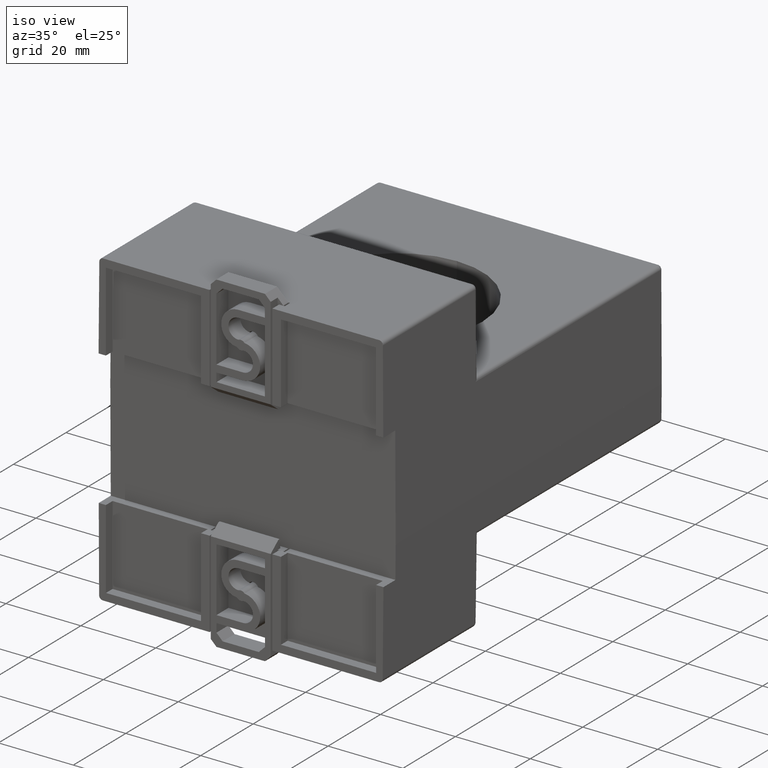
[diagram: clean part render]
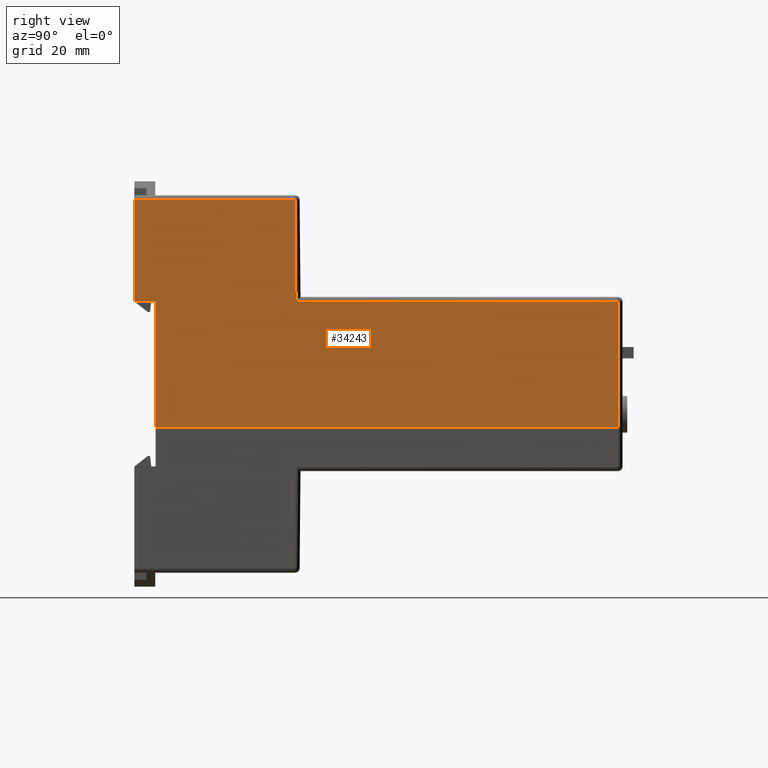
[diagram: tour spotlight — one face highlighted and labeled with its STEP entity id]
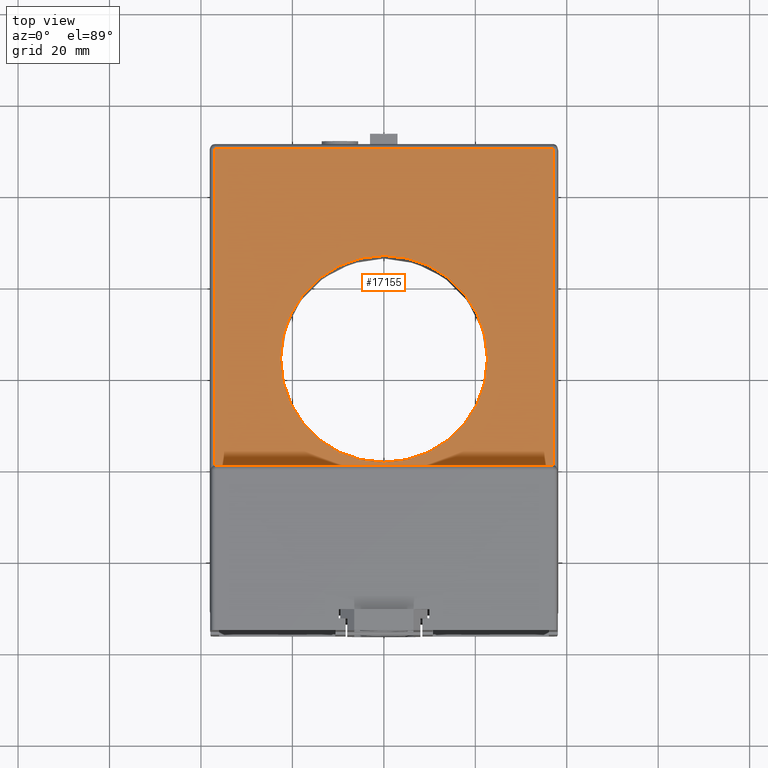
[diagram: tour spotlight — one face highlighted and labeled with its STEP entity id]
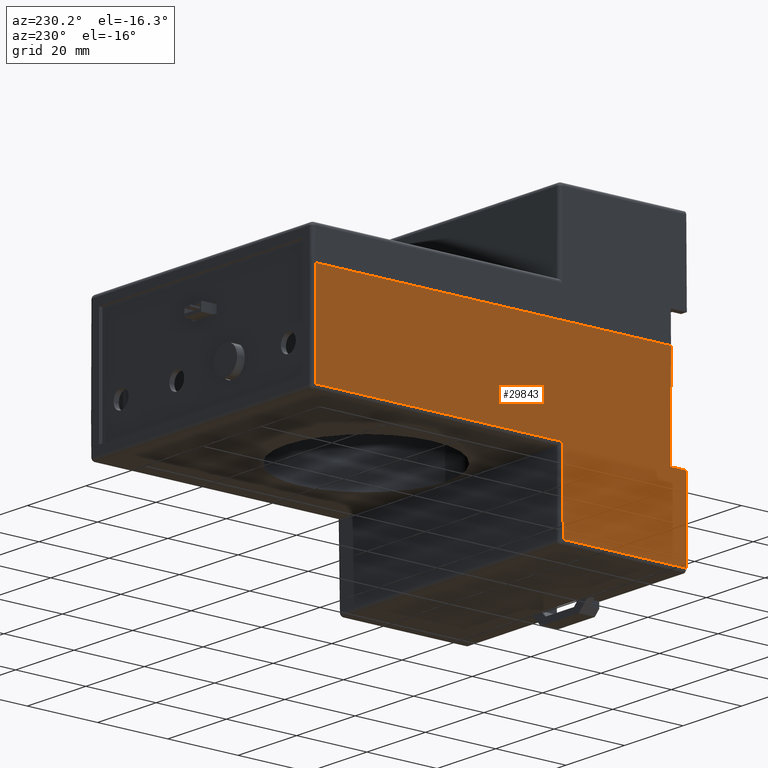
[diagram: tour spotlight — one face highlighted and labeled with its STEP entity id]
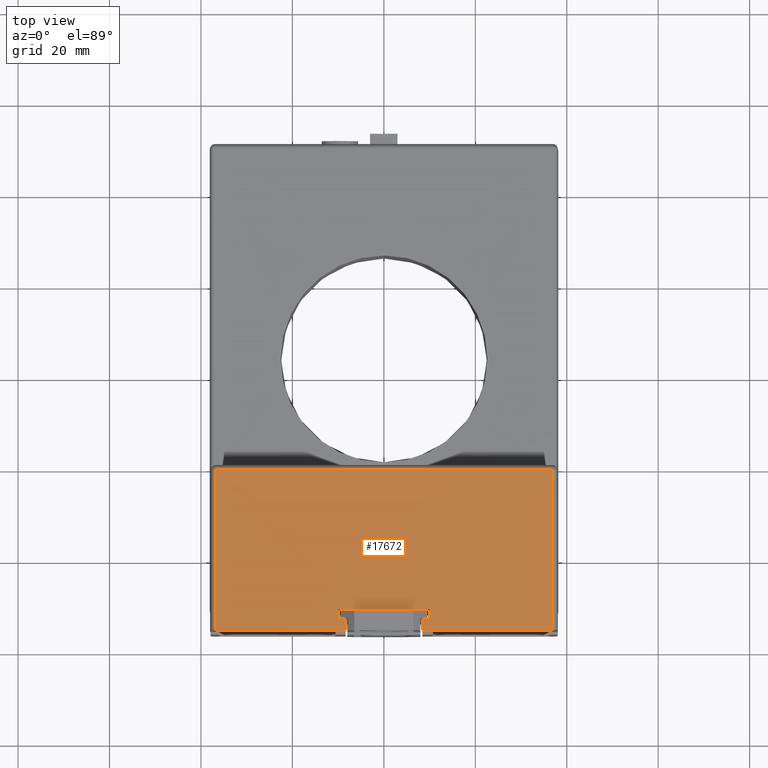
[diagram: tour spotlight — one face highlighted and labeled with its STEP entity id]
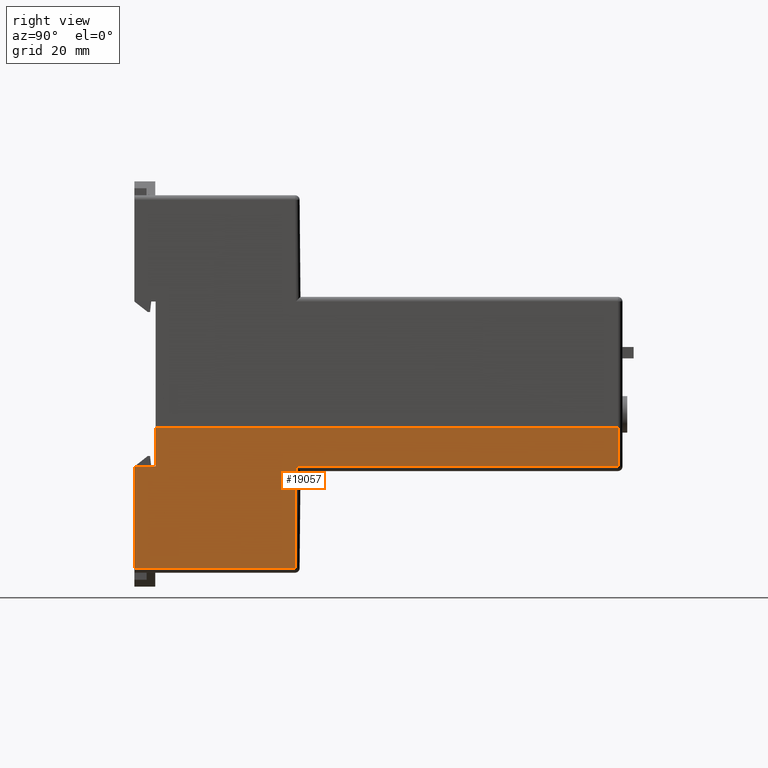
[diagram: tour spotlight — one face highlighted and labeled with its STEP entity id]
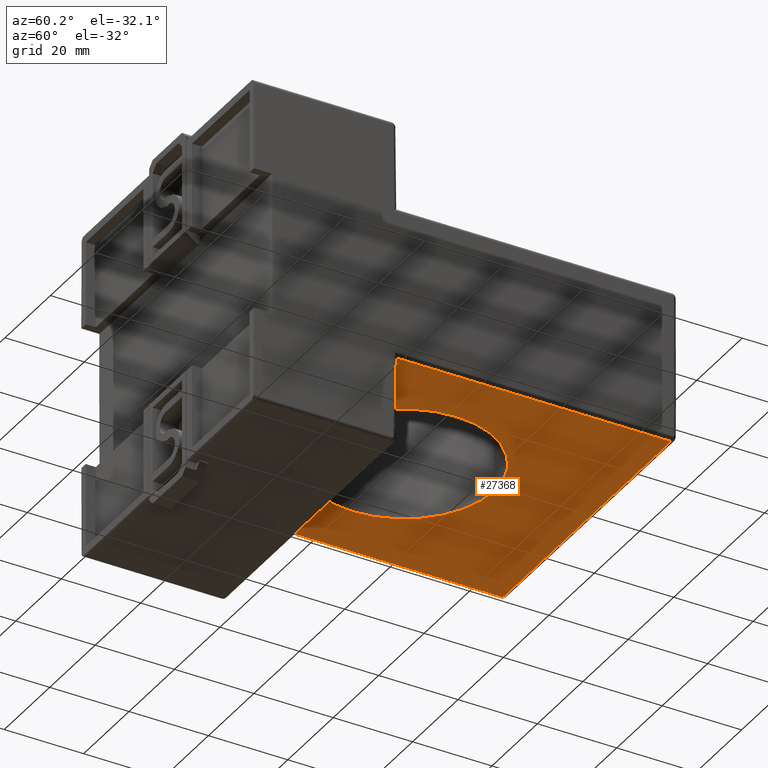
[diagram: tour spotlight — one face highlighted and labeled with its STEP entity id]
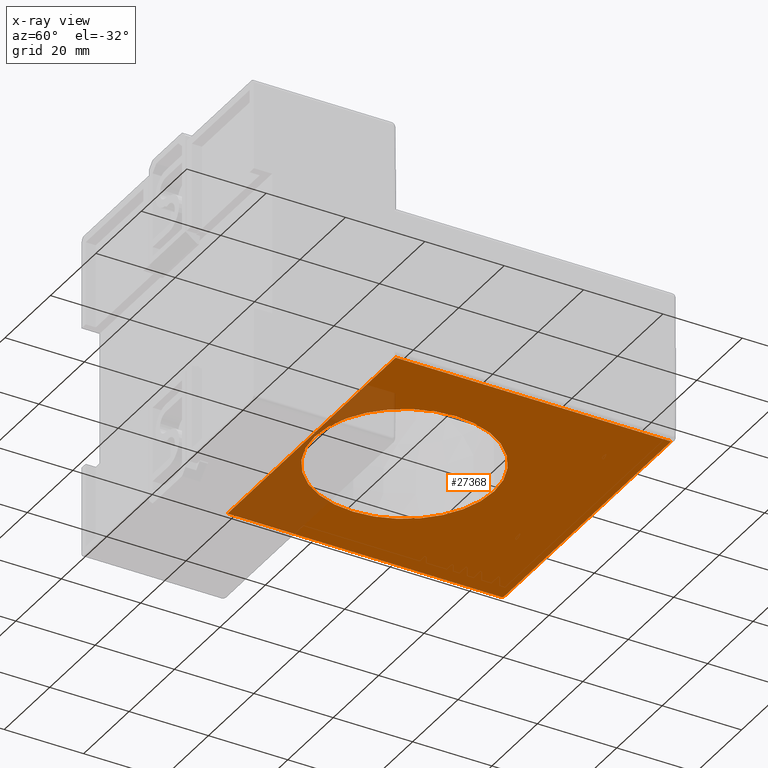
[diagram: x-ray of the same camera — body ghosted, this tour face saturated]
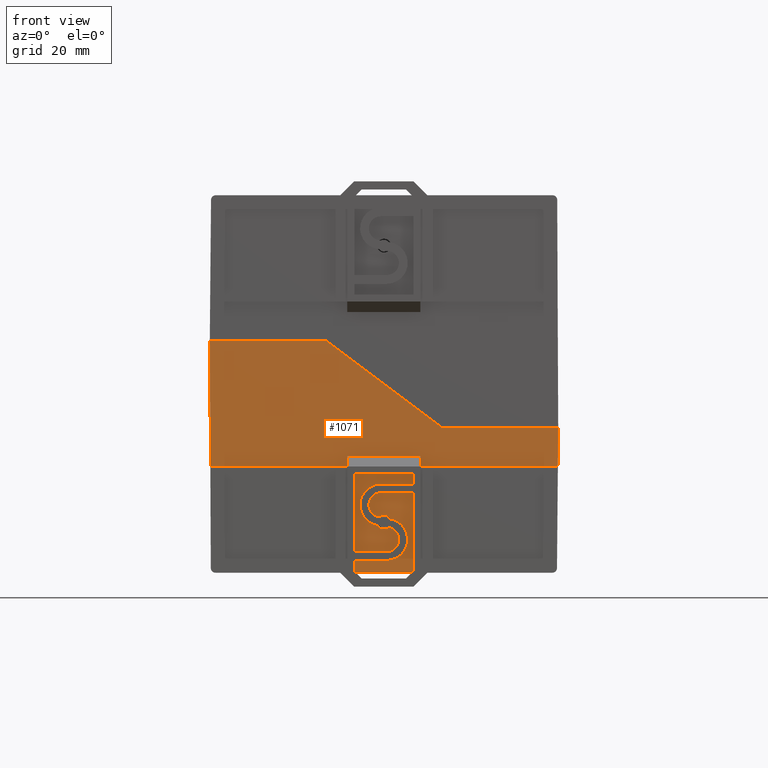
[diagram: tour spotlight — one face highlighted and labeled with its STEP entity id]
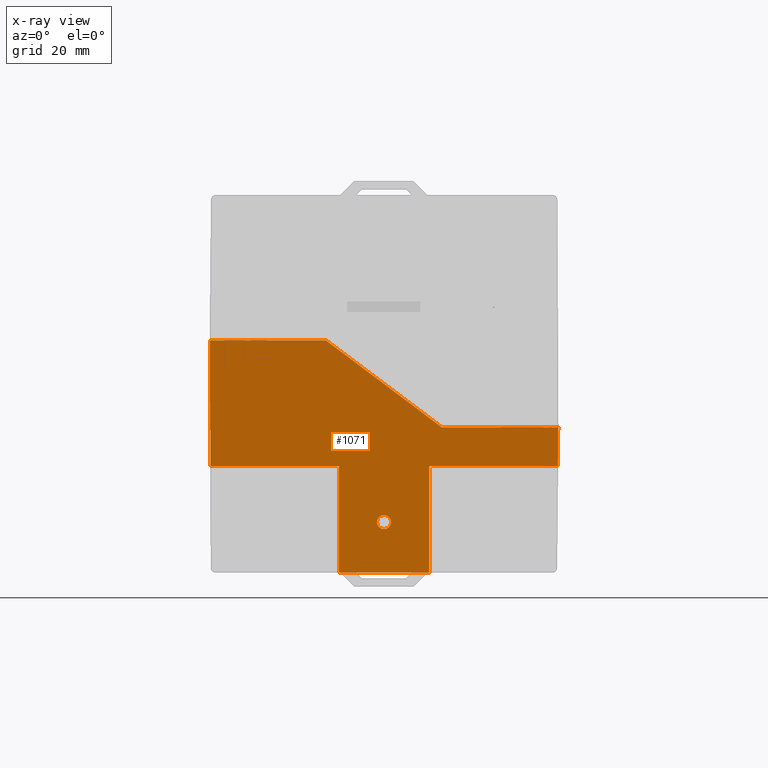
[diagram: x-ray of the same camera — body ghosted, this tour face saturated]
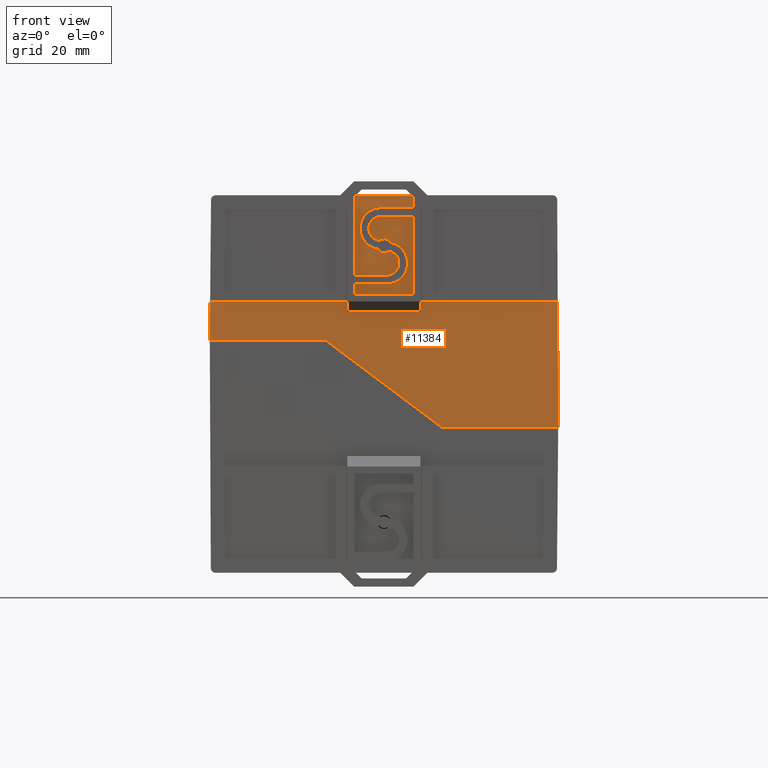
[diagram: tour spotlight — one face highlighted and labeled with its STEP entity id]
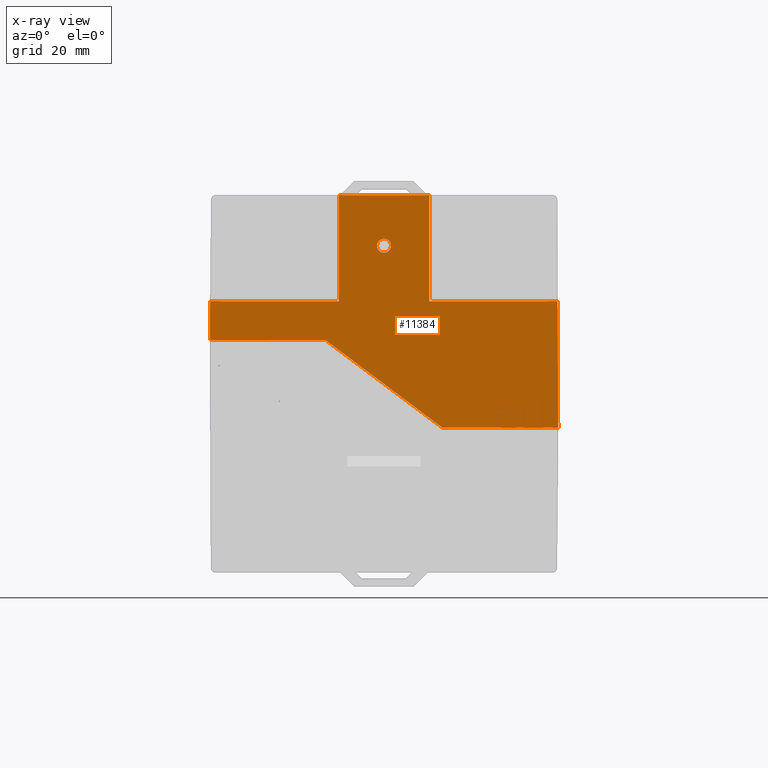
[diagram: x-ray of the same camera — body ghosted, this tour face saturated]
A machine part: a face-by-face anatomy tour. The part has 1046 B-rep faces; the first image is the clean iso view, then the 8 largest visible faces are spotlighted one at a time (largest first), each with its STEP entity span.

Face 1 — right view, entity #34243. In plain terms, the highlighted planar face has unit normal (1, 0, 0.0044).
Definition (entity closure, byte-faithful):
#30 = CARTESIAN_POINT ( 'NONE',  ( 1.492723693535687346, -2.816293787826626094, 0.8475665139999902786 ) ) ;
#44 = CARTESIAN_POINT ( 'NONE',  ( 1.496596457292090454, -2.816293787826626094, -0.04000000047558559257 ) ) ;
#270 = ORIENTED_EDGE ( 'NONE', *, *, #10837, .T. ) ;
#595 = CARTESIAN_POINT ( 'NONE',  ( 1.496592087636614110, -1.607685777358805135, -0.03919829871860153192 ) ) ;
#1323 = LINE ( 'NONE', #23182, #25354 ) ;
#2337 = CARTESIAN_POINT ( 'NONE',  ( 1.492774225619958539, -1.615268391268275927, 0.8357803879475098618 ) ) ;
#2631 = B_SPLINE_CURVE_WITH_KNOTS ( 'NONE', 3,
 ( #595, #19107, #11618, #2922 ),
 .UNSPECIFIED., .F., .F.,
 ( 4, 4 ),
 ( 0.000000000000000000, 1.000000000000000000 ),
 .UNSPECIFIED. ) ;
#2922 = CARTESIAN_POINT ( 'NONE',  ( 1.492774225619958539, -1.615268391268275927, 0.8357803879475098618 ) ) ;
#3330 = VERTEX_POINT ( 'NONE', #22523 ) ;
#3452 = LINE ( 'NONE', #17125, #20082 ) ;
#3633 = VECTOR ( 'NONE', #11294, 39.37007874015748143 ) ;
#3744 = B_SPLINE_CURVE_WITH_KNOTS ( 'NONE', 3,
 ( #12589, #28936, #7431, #23412 ),
 .UNSPECIFIED., .F., .F.,
 ( 4, 4 ),
 ( 0.000000000000000000, 1.000000000000000000 ),
 .UNSPECIFIED. ) ;
#4182 = VECTOR ( 'NONE', #19376, 39.37007874015748854 ) ;
#4874 = CARTESIAN_POINT ( 'NONE',  ( 1.492775027347147621, -2.996293787826625810, 0.8358017038725689130 ) ) ;
#5375 = CARTESIAN_POINT ( 'NONE',  ( 1.492775089519872589, -2.075610190121058629, 0.8357874958592902415 ) ) ;
#6965 = VERTEX_POINT ( 'NONE', #10393 ) ;
#7040 = DIRECTION ( 'NONE',  ( 0.9999904807223222170, 0.000000000000000000, 0.004363308920883456066 ) ) ;
#7431 = CARTESIAN_POINT ( 'NONE',  ( 1.498172203625456778, 1.164341678823145987, -0.4011321966990649135 ) ) ;
#8223 = EDGE_CURVE ( 'NONE', #31862, #3330, #8270, .T. ) ;
#8270 = LINE ( 'NONE', #16592, #3633 ) ;
#8726 = AXIS2_PLACEMENT_3D ( 'NONE', #30856, #7040, #22849 ) ;
#8733 = VERTEX_POINT ( 'NONE', #44 ) ;
#8971 = ORIENTED_EDGE ( 'NONE', *, *, #13637, .T. ) ;
#10290 = CARTESIAN_POINT ( 'NONE',  ( 1.497027193035681103, -2.996293787826625810, -0.1387167430000149637 ) ) ;
#10348 = CARTESIAN_POINT ( 'NONE',  ( 1.492775058522600062, -2.535951988973842219, 0.8357945998663190990 ) ) ;
#10393 = CARTESIAN_POINT ( 'NONE',  ( 1.501330692535673306, -2.816293787826626094, -1.125000000000013767 ) ) ;
#10837 = EDGE_CURVE ( 'NONE', #35133, #33554, #31633, .T. ) ;
#11120 = DIRECTION ( 'NONE',  ( 0.000000000000000000, 1.000000000000000000, 0.000000000000000000 ) ) ;
#11294 = DIRECTION ( 'NONE',  ( 0.000000000000000000, -1.000000000000000000, 0.000000000000000000 ) ) ;
#11618 = CARTESIAN_POINT ( 'NONE',  ( 1.494047733401352884, -1.612740853298451960, 0.5441208295962433050 ) ) ;
#12381 = ORIENTED_EDGE ( 'NONE', *, *, #8223, .T. ) ;
#12398 = FACE_OUTER_BOUND ( 'NONE', #32472, .T. ) ;
#12552 = ORIENTED_EDGE ( 'NONE', *, *, #22184, .T. ) ;
#12589 = CARTESIAN_POINT ( 'NONE',  ( 1.501331410439247893, 1.164352872123645799, -1.124999996867549257 ) ) ;
#13637 = EDGE_CURVE ( 'NONE', #15381, #8733, #1323, .T. ) ;
#14654 = ORIENTED_EDGE ( 'NONE', *, *, #29491, .T. ) ;
#15381 = VERTEX_POINT ( 'NONE', #24362 ) ;
#16592 = CARTESIAN_POINT ( 'NONE',  ( 1.496592959168775439, -0.9034885178266259809, -0.03919829468800295480 ) ) ;
#16786 = CARTESIAN_POINT ( 'NONE',  ( 1.501331410439247893, 1.164352872123645799, -1.124999996867549257 ) ) ;
#17125 = CARTESIAN_POINT ( 'NONE',  ( 1.501330692535673306, -0.8062937878266260849, -1.125000000000013767 ) ) ;
#17498 = VERTEX_POINT ( 'NONE', #16786 ) ;
#17852 = DIRECTION ( 'NONE',  ( 0.000000000000000000, 1.000000000000000000, 0.000000000000000000 ) ) ;
#18968 = ORIENTED_EDGE ( 'NONE', *, *, #21414, .T. ) ;
#19107 = CARTESIAN_POINT ( 'NONE',  ( 1.495320346285561097, -1.610213315328628214, 0.2524612673402252816 ) ) ;
#19376 = DIRECTION ( 'NONE',  ( 0.004363308920883450862, 0.000000000000000000, -0.9999904807223221059 ) ) ;
#20082 = VECTOR ( 'NONE', #11120, 39.37007874015748143 ) ;
#20195 = EDGE_CURVE ( 'NONE', #3330, #35133, #2631, .T. ) ;
#20726 = PLANE ( 'NONE',  #8726 ) ;
#20954 = LINE ( 'NONE', #10290, #25718 ) ;
#21376 = CARTESIAN_POINT ( 'NONE',  ( 1.492775027347147621, -2.996293787826625810, 0.8358017038725689130 ) ) ;
#21414 = EDGE_CURVE ( 'NONE', #6965, #17498, #3452, .T. ) ;
#21535 = LINE ( 'NONE', #30, #4182 ) ;
#22184 = EDGE_CURVE ( 'NONE', #17498, #31862, #3744, .T. ) ;
#22523 = CARTESIAN_POINT ( 'NONE',  ( 1.496592087636614110, -1.607685777358805135, -0.03919829871860153192 ) ) ;
#22849 = DIRECTION ( 'NONE',  ( 0.000000000000000000, -1.000000000000000000, 0.000000000000000000 ) ) ;
#23182 = CARTESIAN_POINT ( 'NONE',  ( 1.496596457294165239, -0.9034885178266259809, -0.04000000095115670284 ) ) ;
#23412 = CARTESIAN_POINT ( 'NONE',  ( 1.496593678547291528, 1.164336082172895637, -0.03919829190969988109 ) ) ;
#23851 = CARTESIAN_POINT ( 'NONE',  ( 1.492774225619958539, -1.615268391268275927, 0.8357803879475098618 ) ) ;
#24362 = CARTESIAN_POINT ( 'NONE',  ( 1.496596457292783455, -2.996293787826625810, -0.04000000047576291601 ) ) ;
#25354 = VECTOR ( 'NONE', #17852, 39.37007874015748143 ) ;
#25718 = VECTOR ( 'NONE', #31946, 39.37007874015748854 ) ;
#27073 = CARTESIAN_POINT ( 'NONE',  ( 1.496593678547291528, 1.164336082172895637, -0.03919829190969988109 ) ) ;
#28936 = CARTESIAN_POINT ( 'NONE',  ( 1.499751448080564709, 1.164347275473397891, -0.7630660983495372029 ) ) ;
#29491 = EDGE_CURVE ( 'NONE', #8733, #6965, #21535, .T. ) ;
#30856 = CARTESIAN_POINT ( 'NONE',  ( 1.492723693535687346, -2.996293787826625810, 0.8475665139999902786 ) ) ;
#31633 = B_SPLINE_CURVE_WITH_KNOTS ( 'NONE', 3,
 ( #23851, #5375, #10348, #21376 ),
 .UNSPECIFIED., .F., .F.,
 ( 4, 4 ),
 ( 0.000000000000000000, 1.000000000000000000 ),
 .UNSPECIFIED. ) ;
#31862 = VERTEX_POINT ( 'NONE', #27073 ) ;
#31946 = DIRECTION ( 'NONE',  ( 0.004363308920883450862, 0.000000000000000000, -0.9999904807223221059 ) ) ;
#32472 = EDGE_LOOP ( 'NONE', ( #12381, #34033, #270, #33428, #8971, #14654, #18968, #12552 ) ) ;
#33417 = EDGE_CURVE ( 'NONE', #33554, #15381, #20954, .T. ) ;
#33428 = ORIENTED_EDGE ( 'NONE', *, *, #33417, .T. ) ;
#33554 = VERTEX_POINT ( 'NONE', #4874 ) ;
#34033 = ORIENTED_EDGE ( 'NONE', *, *, #20195, .T. ) ;
#34243 = ADVANCED_FACE ( 'NONE', ( #12398 ), #20726, .T. ) ;
#35133 = VERTEX_POINT ( 'NONE', #2337 ) ;

Face 2 — top view, entity #17155. In plain terms, the highlighted planar face has unit normal (-0, 0, -1).
Definition (entity closure, byte-faithful):
#115 = DIRECTION ( 'NONE',  ( 7.000000000000000150E-15, 0.000000000000000000, 1.000000000000000000 ) ) ;
#252 = CIRCLE ( 'NONE', #23509, 0.8904034189999999738 ) ;
#486 = CARTESIAN_POINT ( 'NONE',  ( 0.001330692535681425289, -0.6462937878266260538, 1.092739197465704696E-15 ) ) ;
#1269 = LINE ( 'NONE', #9102, #3606 ) ;
#1388 = EDGE_CURVE ( 'NONE', #20201, #3164, #12426, .T. ) ;
#1484 = DIRECTION ( 'NONE',  ( 1.000000000000000000, 0.000000000000000000, -7.000000000000000938E-15 ) ) ;
#1699 = EDGE_CURVE ( 'NONE', #19348, #3164, #4659, .T. ) ;
#2282 = CARTESIAN_POINT ( 'NONE',  ( -1.456293795405334768, -1.568659322776454701, 5.616848120145913300E-07 ) ) ;
#3164 = VERTEX_POINT ( 'NONE', #30324 ) ;
#3217 = EDGE_CURVE ( 'NONE', #26139, #7997, #252, .T. ) ;
#3606 = VECTOR ( 'NONE', #25781, 39.37007874015748143 ) ;
#3695 = ORIENTED_EDGE ( 'NONE', *, *, #10621, .F. ) ;
#4224 = EDGE_LOOP ( 'NONE', ( #16128, #5225 ) ) ;
#4659 = LINE ( 'NONE', #31840, #4747 ) ;
#4747 = VECTOR ( 'NONE', #1484, 39.37007874015748143 ) ;
#5225 = ORIENTED_EDGE ( 'NONE', *, *, #3217, .F. ) ;
#6170 = CARTESIAN_POINT ( 'NONE',  ( 0.001330692535681425289, 0.2441096311733744195, 1.092739197465704696E-15 ) ) ;
#6183 = CARTESIAN_POINT ( 'NONE',  ( 1.457194806560365929, -0.6576589748279371150, -7.709014693006753181E-09 ) ) ;
#6508 = DIRECTION ( 'NONE',  ( -7.000000000000000938E-15, 0.000000000000000000, -1.000000000000000000 ) ) ;
#6564 = VERTEX_POINT ( 'NONE', #2282 ) ;
#6854 = CARTESIAN_POINT ( 'NONE',  ( 1.474704807535681006, -1.585058090826625854, -1.065420717529063030E-14 ) ) ;
#7997 = VERTEX_POINT ( 'NONE', #6170 ) ;
#8261 = CARTESIAN_POINT ( 'NONE',  ( 1.457180593343850417, -1.568655253667370131, 2.122863892547027749E-08 ) ) ;
#8772 = CARTESIAN_POINT ( 'NONE',  ( -0.4851356658222711338, -1.568657781576613397, 3.831457446423450595E-07 ) ) ;
#9010 = DIRECTION ( 'NONE',  ( -1.000000000000000000, 0.000000000000000000, 7.000000000000000938E-15 ) ) ;
#9102 = CARTESIAN_POINT ( 'NONE',  ( -1.456368731464318778, -1.585058090826625854, 9.015098379092066452E-15 ) ) ;
#9169 = FACE_BOUND ( 'NONE', #4224, .T. ) ;
#10621 = EDGE_CURVE ( 'NONE', #20201, #6564, #14389, .T. ) ;
#12426 = B_SPLINE_CURVE_WITH_KNOTS ( 'NONE', 3,
 ( #30526, #6183, #28210, #16859 ),
 .UNSPECIFIED., .F., .F.,
 ( 4, 4 ),
 ( 1.321415185193150075E-06, 1.000000000000000000 ),
 .UNSPECIFIED. ) ;
#13674 = CARTESIAN_POINT ( 'NONE',  ( 0.001330692535681425289, -1.536697206826626250, 1.092739197465704696E-15 ) ) ;
#14389 = B_SPLINE_CURVE_WITH_KNOTS ( 'NONE', 3,
 ( #19433, #27950, #8772, #19621 ),
 .UNSPECIFIED., .F., .F.,
 ( 4, 4 ),
 ( 0.000000000000000000, 1.000000000000000000 ),
 .UNSPECIFIED. ) ;
#15029 = FACE_OUTER_BOUND ( 'NONE', #19567, .T. ) ;
#16128 = ORIENTED_EDGE ( 'NONE', *, *, #17094, .F. ) ;
#16859 = CARTESIAN_POINT ( 'NONE',  ( 1.457223255261008044, 1.164336082238254022, -8.780214088596811020E-11 ) ) ;
#17094 = EDGE_CURVE ( 'NONE', #7997, #26139, #25248, .T. ) ;
#17155 = ADVANCED_FACE ( 'NONE', ( #9169, #15029 ), #20192, .F. ) ;
#19348 = VERTEX_POINT ( 'NONE', #19873 ) ;
#19433 = CARTESIAN_POINT ( 'NONE',  ( 1.457180593343850417, -1.568655253667370131, 2.122863892547027749E-08 ) ) ;
#19567 = EDGE_LOOP ( 'NONE', ( #35169, #34122, #21559, #3695 ) ) ;
#19621 = CARTESIAN_POINT ( 'NONE',  ( -1.456293795405334768, -1.568659322776454701, 5.616848120145913300E-07 ) ) ;
#19873 = CARTESIAN_POINT ( 'NONE',  ( -1.456368731279893636, 1.164336082433041319, -5.115631234455764260E-11 ) ) ;
#20192 = PLANE ( 'NONE',  #26404 ) ;
#20201 = VERTEX_POINT ( 'NONE', #8261 ) ;
#21559 = ORIENTED_EDGE ( 'NONE', *, *, #34968, .T. ) ;
#21794 = DIRECTION ( 'NONE',  ( 0.000000000000000000, 1.000000000000000000, 0.000000000000000000 ) ) ;
#23509 = AXIS2_PLACEMENT_3D ( 'NONE', #24466, #32466, #24643 ) ;
#24466 = CARTESIAN_POINT ( 'NONE',  ( 0.001330692535681425289, -0.6462937878266260538, 1.092739197465704696E-15 ) ) ;
#24643 = DIRECTION ( 'NONE',  ( 0.000000000000000000, 1.000000000000000000, 0.000000000000000000 ) ) ;
#25248 = CIRCLE ( 'NONE', #28087, 0.8904034189999999738 ) ;
#25781 = DIRECTION ( 'NONE',  ( 0.000000000000000000, -1.000000000000000000, 0.000000000000000000 ) ) ;
#26139 = VERTEX_POINT ( 'NONE', #13674 ) ;
#26404 = AXIS2_PLACEMENT_3D ( 'NONE', #6854, #6508, #9010 ) ;
#27950 = CARTESIAN_POINT ( 'NONE',  ( 0.4860224637607899467, -1.568657779901279081, 1.911714474721929345E-07 ) ) ;
#28087 = AXIS2_PLACEMENT_3D ( 'NONE', #486, #115, #21794 ) ;
#28210 = CARTESIAN_POINT ( 'NONE',  ( 1.457209031056098336, 0.2533385536727173482, -6.829619984160649566E-15 ) ) ;
#30324 = CARTESIAN_POINT ( 'NONE',  ( 1.457223255261008044, 1.164336082238254022, -8.780214088596811020E-11 ) ) ;
#30526 = CARTESIAN_POINT ( 'NONE',  ( 1.457180593343850417, -1.568655253667370131, 2.122863892547027749E-08 ) ) ;
#31840 = CARTESIAN_POINT ( 'NONE',  ( 0.0004272620356815613600, 1.164336082173376141, -3.005032793030688554E-15 ) ) ;
#32466 = DIRECTION ( 'NONE',  ( 7.000000000000000150E-15, 0.000000000000000000, 1.000000000000000000 ) ) ;
#34122 = ORIENTED_EDGE ( 'NONE', *, *, #1699, .F. ) ;
#34968 = EDGE_CURVE ( 'NONE', #19348, #6564, #1269, .T. ) ;
#35169 = ORIENTED_EDGE ( 'NONE', *, *, #1388, .T. ) ;

Face 3 — auxiliary view, entity #29843. In plain terms, the highlighted planar face has unit normal (-1, 0, -0.0044).
Definition (entity closure, byte-faithful):
#1606 = EDGE_CURVE ( 'NONE', #32773, #16253, #23755, .T. ) ;
#1938 = CARTESIAN_POINT ( 'NONE',  ( -1.497090063009207661, 1.164347275473397003, -0.7369339016505087603 ) ) ;
#2319 = LINE ( 'NONE', #18299, #3328 ) ;
#2824 = CARTESIAN_POINT ( 'NONE',  ( -1.498670025367893732, 1.164352872123645799, -0.3750000031324988159 ) ) ;
#3328 = VECTOR ( 'NONE', #12993, 39.37007874015748143 ) ;
#4614 = CARTESIAN_POINT ( 'NONE',  ( -1.490112840548586615, -1.615268391268275927, -2.335780387947555159 ) ) ;
#4853 = CARTESIAN_POINT ( 'NONE',  ( -1.490113704448504217, -2.075610190121059073, -2.335787495859336094 ) ) ;
#4937 = CARTESIAN_POINT ( 'NONE',  ( -1.493932293475932926, 1.164336082172895637, -1.460801708090346374 ) ) ;
#5519 = CARTESIAN_POINT ( 'NONE',  ( -1.490113642275775474, -2.996293787826625810, -2.335801703872613988 ) ) ;
#5894 = AXIS2_PLACEMENT_3D ( 'NONE', #13837, #24158, #35014 ) ;
#6749 = DIRECTION ( 'NONE',  ( 0.000000000000000000, -1.000000000000000000, 0.000000000000000000 ) ) ;
#7022 = VECTOR ( 'NONE', #32099, 39.37007874015748854 ) ;
#7232 = VECTOR ( 'NONE', #6749, 39.37007874015748143 ) ;
#7426 = VERTEX_POINT ( 'NONE', #18014 ) ;
#7821 = CARTESIAN_POINT ( 'NONE',  ( -1.492658961214196944, -1.610213315328628658, -1.752461267340270856 ) ) ;
#7980 = CARTESIAN_POINT ( 'NONE',  ( -1.493930702565248181, -1.607685777358805135, -1.460801701281446707 ) ) ;
#8076 = ORIENTED_EDGE ( 'NONE', *, *, #34005, .T. ) ;
#8357 = CARTESIAN_POINT ( 'NONE',  ( -1.490113673451231691, -2.535951988973842219, -2.335794599866364951 ) ) ;
#8509 = FACE_OUTER_BOUND ( 'NONE', #18341, .T. ) ;
#9605 = EDGE_CURVE ( 'NONE', #7426, #32773, #16845, .T. ) ;
#10042 = ORIENTED_EDGE ( 'NONE', *, *, #22614, .T. ) ;
#10520 = VECTOR ( 'NONE', #31440, 39.37007874015748143 ) ;
#10675 = CARTESIAN_POINT ( 'NONE',  ( -1.491386348329986733, -1.612740853298452182, -2.044120829596288935 ) ) ;
#10885 = CARTESIAN_POINT ( 'NONE',  ( -1.493935072221421523, -2.996293787826625810, -1.459999999524283387 ) ) ;
#12466 = EDGE_CURVE ( 'NONE', #13252, #24980, #33741, .T. ) ;
#12679 = ORIENTED_EDGE ( 'NONE', *, *, #24910, .T. ) ;
#12735 = CARTESIAN_POINT ( 'NONE',  ( -1.490062308464318974, -2.816293787826626094, -2.347566514000035465 ) ) ;
#12874 = ORIENTED_EDGE ( 'NONE', *, *, #9605, .T. ) ;
#12993 = DIRECTION ( 'NONE',  ( 0.000000000000000000, 1.000000000000000000, 0.000000000000000000 ) ) ;
#13252 = VERTEX_POINT ( 'NONE', #4937 ) ;
#13279 = CARTESIAN_POINT ( 'NONE',  ( -1.493935072220728522, -2.816293787826626094, -1.459999999524462577 ) ) ;
#13290 = EDGE_CURVE ( 'NONE', #28433, #28954, #26063, .T. ) ;
#13837 = CARTESIAN_POINT ( 'NONE',  ( -1.490062308464318974, -2.996293787826625810, -2.347566514000035465 ) ) ;
#15240 = DIRECTION ( 'NONE',  ( -0.004363308920890450471, 0.000000000000000000, 0.9999904807223221059 ) ) ;
#15930 = CARTESIAN_POINT ( 'NONE',  ( -1.494365807964318948, -2.996293787826625810, -1.361283257000035496 ) ) ;
#16136 = CARTESIAN_POINT ( 'NONE',  ( -1.493932293475932926, 1.164336082172895637, -1.460801708090346374 ) ) ;
#16253 = VERTEX_POINT ( 'NONE', #10885 ) ;
#16506 = PLANE ( 'NONE',  #5894 ) ;
#16623 = EDGE_CURVE ( 'NONE', #28954, #22245, #2319, .T. ) ;
#16845 = B_SPLINE_CURVE_WITH_KNOTS ( 'NONE', 3,
 ( #26333, #4853, #8357, #5519 ),
 .UNSPECIFIED., .F., .F.,
 ( 4, 4 ),
 ( 0.000000000000000000, 1.000000000000000000 ),
 .UNSPECIFIED. ) ;
#18014 = CARTESIAN_POINT ( 'NONE',  ( -1.490112840548586615, -1.615268391268275927, -2.335780387947555159 ) ) ;
#18299 = CARTESIAN_POINT ( 'NONE',  ( -1.498669307464318923, -0.8062937878266260849, -0.3750000000000343059 ) ) ;
#18341 = EDGE_LOOP ( 'NONE', ( #24595, #12679, #12874, #21127, #10042, #32041, #21919, #8076 ) ) ;
#19418 = CARTESIAN_POINT ( 'NONE',  ( -1.498669307464318923, -2.816293787826626094, -0.3750000000000343059 ) ) ;
#20234 = VECTOR ( 'NONE', #15240, 39.37007874015748854 ) ;
#21127 = ORIENTED_EDGE ( 'NONE', *, *, #1606, .T. ) ;
#21483 = CARTESIAN_POINT ( 'NONE',  ( -1.495510818554097066, 1.164341678823144877, -1.098867803300981993 ) ) ;
#21919 = ORIENTED_EDGE ( 'NONE', *, *, #16623, .T. ) ;
#22245 = VERTEX_POINT ( 'NONE', #2824 ) ;
#22349 = CARTESIAN_POINT ( 'NONE',  ( -1.493930702565248181, -1.607685777358805135, -1.460801701281446707 ) ) ;
#22614 = EDGE_CURVE ( 'NONE', #16253, #28433, #22910, .T. ) ;
#22910 = LINE ( 'NONE', #28800, #10520 ) ;
#23090 = CARTESIAN_POINT ( 'NONE',  ( -1.493931574097413506, -0.9034885178266259809, -1.460801705312043230 ) ) ;
#23755 = LINE ( 'NONE', #15930, #7022 ) ;
#24158 = DIRECTION ( 'NONE',  ( -0.9999904807223221059, 0.000000000000000000, -0.004363308920890455675 ) ) ;
#24595 = ORIENTED_EDGE ( 'NONE', *, *, #12466, .T. ) ;
#24910 = EDGE_CURVE ( 'NONE', #24980, #7426, #28542, .T. ) ;
#24980 = VERTEX_POINT ( 'NONE', #22349 ) ;
#26063 = LINE ( 'NONE', #12735, #20234 ) ;
#26333 = CARTESIAN_POINT ( 'NONE',  ( -1.490112840548586615, -1.615268391268275927, -2.335780387947555159 ) ) ;
#28433 = VERTEX_POINT ( 'NONE', #13279 ) ;
#28542 = B_SPLINE_CURVE_WITH_KNOTS ( 'NONE', 3,
 ( #7980, #7821, #10675, #4614 ),
 .UNSPECIFIED., .F., .F.,
 ( 4, 4 ),
 ( 0.000000000000000000, 1.000000000000000000 ),
 .UNSPECIFIED. ) ;
#28800 = CARTESIAN_POINT ( 'NONE',  ( -1.493935072222799532, -0.9034885178266259809, -1.459999999048891439 ) ) ;
#28954 = VERTEX_POINT ( 'NONE', #19418 ) ;
#29635 = CARTESIAN_POINT ( 'NONE',  ( -1.498670025367893732, 1.164352872123645799, -0.3750000031324988159 ) ) ;
#29843 = ADVANCED_FACE ( 'NONE', ( #8509 ), #16506, .T. ) ;
#30040 = B_SPLINE_CURVE_WITH_KNOTS ( 'NONE', 3,
 ( #29635, #1938, #21483, #16136 ),
 .UNSPECIFIED., .F., .F.,
 ( 4, 4 ),
 ( 0.000000000000000000, 1.000000000000000000 ),
 .UNSPECIFIED. ) ;
#30163 = CARTESIAN_POINT ( 'NONE',  ( -1.490113642275775474, -2.996293787826625810, -2.335801703872613988 ) ) ;
#31440 = DIRECTION ( 'NONE',  ( 0.000000000000000000, 1.000000000000000000, 0.000000000000000000 ) ) ;
#32041 = ORIENTED_EDGE ( 'NONE', *, *, #13290, .T. ) ;
#32099 = DIRECTION ( 'NONE',  ( -0.004363308920890450471, 0.000000000000000000, 0.9999904807223221059 ) ) ;
#32773 = VERTEX_POINT ( 'NONE', #30163 ) ;
#33741 = LINE ( 'NONE', #23090, #7232 ) ;
#34005 = EDGE_CURVE ( 'NONE', #22245, #13252, #30040, .T. ) ;
#35014 = DIRECTION ( 'NONE',  ( -0.004363308920890455675, 0.000000000000000000, 0.9999904807223221059 ) ) ;

Face 4 — top view, entity #17672. In plain terms, the highlighted planar face has unit normal (-0, 0, -1).
Definition (entity closure, byte-faithful):
#1209 = DIRECTION ( 'NONE',  ( 0.000000000000000000, 1.000000000000000000, 0.000000000000000000 ) ) ;
#1515 = CARTESIAN_POINT ( 'NONE',  ( -0.3286693063947476734, -2.895230795817787417, 0.8750000000000001110 ) ) ;
#1780 = CARTESIAN_POINT ( 'NONE',  ( 0.3313306931888153617, -2.996293787826625810, 0.8750000000000001110 ) ) ;
#2020 = DIRECTION ( 'NONE',  ( -1.000000000000000000, 0.000000000000000000, 7.000000000000000938E-15 ) ) ;
#2208 = CARTESIAN_POINT ( 'NONE',  ( 0.3313306928622528069, -2.895230795823310999, 0.8750000000000001110 ) ) ;
#2372 = CARTESIAN_POINT ( 'NONE',  ( -1.448732722464319167, -2.996293787826625810, 0.8750000000000001110 ) ) ;
#2670 = CARTESIAN_POINT ( 'NONE',  ( 1.453405323535685190, -2.996293787826625810, 0.8749999999999902300 ) ) ;
#3674 = CARTESIAN_POINT ( 'NONE',  ( -0.3286693067454720119, -2.996293787826625810, 0.8750000000000001110 ) ) ;
#3844 = VECTOR ( 'NONE', #19907, 39.37007874015748143 ) ;
#3897 = DIRECTION ( 'NONE',  ( 1.000000000000000000, 0.000000000000000000, -7.000000000000000938E-15 ) ) ;
#4502 = DIRECTION ( 'NONE',  ( -7.000000000000000938E-15, 0.000000000000000000, -1.000000000000000000 ) ) ;
#5084 = CARTESIAN_POINT ( 'NONE',  ( 0.002336300535685559201, -1.615321839826626027, 0.8750000000000001110 ) ) ;
#5175 = EDGE_CURVE ( 'NONE', #8923, #27010, #25606, .T. ) ;
#5215 = LINE ( 'NONE', #23869, #33627 ) ;
#5435 = EDGE_CURVE ( 'NONE', #33502, #32225, #27698, .T. ) ;
#5481 = VECTOR ( 'NONE', #29060, 39.37007874015748143 ) ;
#5930 = CARTESIAN_POINT ( 'NONE',  ( -0.3886693073247318719, -2.895230795813366509, 0.8750000000000001110 ) ) ;
#6008 = AXIS2_PLACEMENT_3D ( 'NONE', #23498, #4502, #2020 ) ;
#6147 = DIRECTION ( 'NONE',  ( 1.000000000000000000, 0.000000000000000000, -7.000000000000000938E-15 ) ) ;
#6292 = VERTEX_POINT ( 'NONE', #1780 ) ;
#6890 = EDGE_CURVE ( 'NONE', #6292, #8505, #11852, .T. ) ;
#7301 = VERTEX_POINT ( 'NONE', #5930 ) ;
#7366 = ORIENTED_EDGE ( 'NONE', *, *, #34710, .F. ) ;
#7887 = DIRECTION ( 'NONE',  ( -1.000000000000000000, 0.000000000000000000, 7.000000000000000938E-15 ) ) ;
#8167 = VECTOR ( 'NONE', #23894, 39.37007874015748143 ) ;
#8505 = VERTEX_POINT ( 'NONE', #2208 ) ;
#8547 = ORIENTED_EDGE ( 'NONE', *, *, #26432, .F. ) ;
#8889 = VECTOR ( 'NONE', #1209, 39.37007874015748143 ) ;
#8923 = VERTEX_POINT ( 'NONE', #12463 ) ;
#9201 = LINE ( 'NONE', #17565, #18971 ) ;
#9235 = DIRECTION ( 'NONE',  ( 0.000000000000000000, 1.000000000000000000, 0.000000000000000000 ) ) ;
#9381 = VECTOR ( 'NONE', #6147, 39.37007874015748143 ) ;
#9457 = VECTOR ( 'NONE', #35025, 39.37007874015748143 ) ;
#10075 = LINE ( 'NONE', #5084, #8167 ) ;
#10220 = CARTESIAN_POINT ( 'NONE',  ( -0.3886693071671492028, -2.816293787636775736, 0.8750000000000001110 ) ) ;
#11259 = EDGE_CURVE ( 'NONE', #27010, #6292, #15835, .T. ) ;
#11419 = EDGE_CURVE ( 'NONE', #23017, #29789, #12546, .T. ) ;
#11767 = CARTESIAN_POINT ( 'NONE',  ( -0.3286693063599642195, -2.305807813826625807, 0.8750000000000001110 ) ) ;
#11852 = LINE ( 'NONE', #14163, #27997 ) ;
#12463 = CARTESIAN_POINT ( 'NONE',  ( 1.453405323694519913, -1.615321818913442842, 0.8749999999086909286 ) ) ;
#12496 = PLANE ( 'NONE',  #6008 ) ;
#12546 = LINE ( 'NONE', #23563, #5481 ) ;
#13816 = ORIENTED_EDGE ( 'NONE', *, *, #20608, .F. ) ;
#13838 = CARTESIAN_POINT ( 'NONE',  ( 0.3913306925356850319, -2.855762291826626331, 0.8750000000000001110 ) ) ;
#14163 = CARTESIAN_POINT ( 'NONE',  ( 0.3313306938419453007, -2.305807813826625807, 0.8750000000000001110 ) ) ;
#14687 = DIRECTION ( 'NONE',  ( 0.000000000000000000, 1.000000000000000000, 0.000000000000000000 ) ) ;
#15562 = EDGE_CURVE ( 'NONE', #7301, #23017, #33569, .T. ) ;
#15630 = VERTEX_POINT ( 'NONE', #26276 ) ;
#15692 = ORIENTED_EDGE ( 'NONE', *, *, #26214, .T. ) ;
#15835 = LINE ( 'NONE', #26815, #9457 ) ;
#16175 = VECTOR ( 'NONE', #24485, 39.37007874015748143 ) ;
#16910 = CARTESIAN_POINT ( 'NONE',  ( -0.3886693074643102763, -2.855762291826626331, 0.8750000000000001110 ) ) ;
#17223 = VERTEX_POINT ( 'NONE', #3674 ) ;
#17565 = CARTESIAN_POINT ( 'NONE',  ( 0.002336300535685559201, -2.895230795813366509, 0.8750000000000001110 ) ) ;
#17672 = ADVANCED_FACE ( 'NONE', ( #24012 ), #12496, .F. ) ;
#17796 = CARTESIAN_POINT ( 'NONE',  ( -1.448732722464319167, -1.615321813826626096, 0.8750000000000001110 ) ) ;
#17890 = ORIENTED_EDGE ( 'NONE', *, *, #21155, .F. ) ;
#18041 = ORIENTED_EDGE ( 'NONE', *, *, #5435, .F. ) ;
#18120 = ORIENTED_EDGE ( 'NONE', *, *, #6890, .F. ) ;
#18901 = ORIENTED_EDGE ( 'NONE', *, *, #15562, .T. ) ;
#18971 = VECTOR ( 'NONE', #3897, 39.37007874015748143 ) ;
#19907 = DIRECTION ( 'NONE',  ( 0.000000000000000000, -1.000000000000000000, 0.000000000000000000 ) ) ;
#19976 = CARTESIAN_POINT ( 'NONE',  ( 0.002336300535685559201, -2.895230795813366509, 0.8750000000000001110 ) ) ;
#20204 = VECTOR ( 'NONE', #22770, 39.37007874015748143 ) ;
#20220 = EDGE_LOOP ( 'NONE', ( #7366, #13816, #22451, #18901, #33088, #15692, #8547, #18120, #25688, #23581, #17890, #18041 ) ) ;
#20608 = EDGE_CURVE ( 'NONE', #26606, #17223, #33429, .T. ) ;
#21155 = EDGE_CURVE ( 'NONE', #32225, #8923, #10075, .T. ) ;
#21318 = CARTESIAN_POINT ( 'NONE',  ( 0.3913306934438228191, -2.816293787636775736, 0.8750000000000001110 ) ) ;
#22176 = LINE ( 'NONE', #13838, #16175 ) ;
#22451 = ORIENTED_EDGE ( 'NONE', *, *, #29931, .F. ) ;
#22770 = DIRECTION ( 'NONE',  ( 0.000000000000000000, -1.000000000000000000, 0.000000000000000000 ) ) ;
#23017 = VERTEX_POINT ( 'NONE', #10220 ) ;
#23498 = CARTESIAN_POINT ( 'NONE',  ( 1.453405323535685190, -2.996293787826625810, 0.8749999999999902300 ) ) ;
#23563 = CARTESIAN_POINT ( 'NONE',  ( 0.001330692535685250137, -2.816293787826626094, 0.8750000000000001110 ) ) ;
#23581 = ORIENTED_EDGE ( 'NONE', *, *, #5175, .F. ) ;
#23869 = CARTESIAN_POINT ( 'NONE',  ( 0.002336300535685559201, -2.996293787826625810, 0.8750000000000001110 ) ) ;
#23894 = DIRECTION ( 'NONE',  ( 1.000000000000000000, 0.000000000000000000, -7.000000000000000938E-15 ) ) ;
#24012 = FACE_OUTER_BOUND ( 'NONE', #20220, .T. ) ;
#24485 = DIRECTION ( 'NONE',  ( 0.000000000000000000, -1.000000000000000000, 0.000000000000000000 ) ) ;
#25272 = CARTESIAN_POINT ( 'NONE',  ( 1.453405323535685190, -2.305807813826625807, 0.8749999999999902300 ) ) ;
#25348 = VECTOR ( 'NONE', #9235, 39.37007874015748143 ) ;
#25606 = LINE ( 'NONE', #25272, #20204 ) ;
#25688 = ORIENTED_EDGE ( 'NONE', *, *, #11259, .F. ) ;
#26214 = EDGE_CURVE ( 'NONE', #29789, #15630, #22176, .T. ) ;
#26276 = CARTESIAN_POINT ( 'NONE',  ( 0.3913306934618271393, -2.895230795819995873, 0.8750000000000001110 ) ) ;
#26432 = EDGE_CURVE ( 'NONE', #8505, #15630, #28162, .T. ) ;
#26606 = VERTEX_POINT ( 'NONE', #1515 ) ;
#26815 = CARTESIAN_POINT ( 'NONE',  ( 0.002336300535685559201, -2.996293787826625810, 0.8750000000000001110 ) ) ;
#27010 = VERTEX_POINT ( 'NONE', #2670 ) ;
#27698 = LINE ( 'NONE', #31220, #8889 ) ;
#27997 = VECTOR ( 'NONE', #14687, 39.37007874015748143 ) ;
#28162 = LINE ( 'NONE', #19976, #9381 ) ;
#29060 = DIRECTION ( 'NONE',  ( 1.000000000000000000, 0.000000000000000000, -7.000000000000000938E-15 ) ) ;
#29789 = VERTEX_POINT ( 'NONE', #21318 ) ;
#29931 = EDGE_CURVE ( 'NONE', #7301, #26606, #9201, .T. ) ;
#31220 = CARTESIAN_POINT ( 'NONE',  ( -1.448732722464319167, -2.305807813826625807, 0.8750000000000001110 ) ) ;
#32225 = VERTEX_POINT ( 'NONE', #17796 ) ;
#33088 = ORIENTED_EDGE ( 'NONE', *, *, #11419, .T. ) ;
#33429 = LINE ( 'NONE', #11767, #3844 ) ;
#33502 = VERTEX_POINT ( 'NONE', #2372 ) ;
#33569 = LINE ( 'NONE', #16910, #25348 ) ;
#33627 = VECTOR ( 'NONE', #7887, 39.37007874015748143 ) ;
#34710 = EDGE_CURVE ( 'NONE', #17223, #33502, #5215, .T. ) ;
#35025 = DIRECTION ( 'NONE',  ( -1.000000000000000000, 0.000000000000000000, 7.000000000000000938E-15 ) ) ;

Face 5 — right view, entity #19057. In plain terms, the highlighted planar face has unit normal (-1, 0, 0.0087).
Definition (entity closure, byte-faithful):
#77 = LINE ( 'NONE', #2588, #19559 ) ;
#960 = CARTESIAN_POINT ( 'NONE',  ( 1.496046689535681207, -2.996293787826625810, -1.730486742500035424 ) ) ;
#1214 = CARTESIAN_POINT ( 'NONE',  ( 1.501330692535681299, -2.816293787826626094, -1.125000000000035305 ) ) ;
#2165 = EDGE_CURVE ( 'NONE', #23566, #22188, #4769, .T. ) ;
#2588 = CARTESIAN_POINT ( 'NONE',  ( 1.501330692535681299, -0.9034788148266260643, -1.125000000000035305 ) ) ;
#4372 = ORIENTED_EDGE ( 'NONE', *, *, #33020, .F. ) ;
#4769 = B_SPLINE_CURVE_WITH_KNOTS ( 'NONE', 3,
 ( #33886, #8831, #5992, #14522 ),
 .UNSPECIFIED., .F., .F.,
 ( 4, 4 ),
 ( 0.000000000000000000, 1.000000000000000000 ),
 .UNSPECIFIED. ) ;
#5053 = B_SPLINE_CURVE_WITH_KNOTS ( 'NONE', 3,
 ( #6347, #33531, #28216, #15054 ),
 .UNSPECIFIED., .F., .F.,
 ( 4, 4 ),
 ( 0.000000000000000000, 1.000000000000000000 ),
 .UNSPECIFIED. ) ;
#5992 = CARTESIAN_POINT ( 'NONE',  ( 1.499391678355511459, 1.164348110933815406, -1.348982459836532755 ) ) ;
#6062 = VECTOR ( 'NONE', #27512, 39.37007874015748143 ) ;
#6196 = PLANE ( 'NONE',  #17411 ) ;
#6329 = CARTESIAN_POINT ( 'NONE',  ( 1.498407191535681138, -2.906293787826625952, -1.460000000000035492 ) ) ;
#6347 = CARTESIAN_POINT ( 'NONE',  ( 1.498399236787612221, -1.607657660740364092, -1.461003597138907262 ) ) ;
#6471 = VERTEX_POINT ( 'NONE', #1214 ) ;
#7374 = ORIENTED_EDGE ( 'NONE', *, *, #33425, .F. ) ;
#8669 = CARTESIAN_POINT ( 'NONE',  ( 1.490762686535681114, -2.996293787826625810, -2.335973485000035321 ) ) ;
#8831 = CARTESIAN_POINT ( 'NONE',  ( 1.500369006513881054, 1.164360142033058709, -1.236991298171712383 ) ) ;
#8912 = ORIENTED_EDGE ( 'NONE', *, *, #27182, .F. ) ;
#9286 = EDGE_CURVE ( 'NONE', #6471, #23566, #77, .T. ) ;
#9689 = CARTESIAN_POINT ( 'NONE',  ( 1.498407191611807132, -2.816293787826626094, -1.460000000000035492 ) ) ;
#9760 = CARTESIAN_POINT ( 'NONE',  ( 1.498398517465539648, -0.6836597468646617992, -1.460993554604754108 ) ) ;
#10177 = VERTEX_POINT ( 'NONE', #24988 ) ;
#10292 = VERTEX_POINT ( 'NONE', #14691 ) ;
#10482 = CARTESIAN_POINT ( 'NONE',  ( 1.498407191693775786, -2.996293787826625810, -1.459999999330428899 ) ) ;
#11945 = ORIENTED_EDGE ( 'NONE', *, *, #19367, .F. ) ;
#12450 = ORIENTED_EDGE ( 'NONE', *, *, #9286, .F. ) ;
#13438 = DIRECTION ( 'NONE',  ( 0.000000000000000000, 1.000000000000000000, 0.000000000000000000 ) ) ;
#14154 = CARTESIAN_POINT ( 'NONE',  ( 1.498399236787612221, -1.607657660740364092, -1.461003597138907262 ) ) ;
#14157 = EDGE_CURVE ( 'NONE', #6471, #14890, #21494, .T. ) ;
#14515 = LINE ( 'NONE', #6329, #19182 ) ;
#14522 = CARTESIAN_POINT ( 'NONE',  ( 1.498406520508698936, 1.164336080886734237, -1.460973553172697059 ) ) ;
#14636 = LINE ( 'NONE', #960, #20603 ) ;
#14691 = CARTESIAN_POINT ( 'NONE',  ( 1.490762686533935177, -2.996293787826625810, -2.335973485200141919 ) ) ;
#14890 = VERTEX_POINT ( 'NONE', #9689 ) ;
#15054 = CARTESIAN_POINT ( 'NONE',  ( 1.490763499015953064, -1.615321838998285520, -2.335973492121598216 ) ) ;
#15407 = ORIENTED_EDGE ( 'NONE', *, *, #14157, .T. ) ;
#16511 = B_SPLINE_CURVE_WITH_KNOTS ( 'NONE', 3,
 ( #29313, #31778, #9760, #20580 ),
 .UNSPECIFIED., .F., .F.,
 ( 4, 4 ),
 ( 0.000000000000000000, 1.000000000000000000 ),
 .UNSPECIFIED. ) ;
#16673 = CARTESIAN_POINT ( 'NONE',  ( 1.490762686535681114, -0.9034788148266260643, -2.335973485000035321 ) ) ;
#17411 = AXIS2_PLACEMENT_3D ( 'NONE', #8669, #18997, #27323 ) ;
#18317 = VECTOR ( 'NONE', #19175, 39.37007874015748854 ) ;
#18997 = DIRECTION ( 'NONE',  ( -0.9999619230605808484, 0.000000000000000000, 0.008726535909806269059 ) ) ;
#19057 = ADVANCED_FACE ( 'NONE', ( #27170 ), #6196, .F. ) ;
#19175 = DIRECTION ( 'NONE',  ( -0.008726535909806267324, 0.000000000000000000, -0.9999619230605806264 ) ) ;
#19182 = VECTOR ( 'NONE', #22310, 39.37007874015748143 ) ;
#19367 = EDGE_CURVE ( 'NONE', #10177, #10292, #30017, .T. ) ;
#19559 = VECTOR ( 'NONE', #13438, 39.37007874015748143 ) ;
#20580 = CARTESIAN_POINT ( 'NONE',  ( 1.498399236787612221, -1.607657660740364092, -1.461003597138907262 ) ) ;
#20603 = VECTOR ( 'NONE', #22781, 39.37007874015748854 ) ;
#20876 = EDGE_CURVE ( 'NONE', #14890, #32604, #14515, .T. ) ;
#21494 = LINE ( 'NONE', #21822, #18317 ) ;
#21822 = CARTESIAN_POINT ( 'NONE',  ( 1.490762686535681114, -2.816293787826626094, -2.335973485000035321 ) ) ;
#22188 = VERTEX_POINT ( 'NONE', #26089 ) ;
#22310 = DIRECTION ( 'NONE',  ( 0.000000000000000000, -1.000000000000000000, 0.000000000000000000 ) ) ;
#22752 = ORIENTED_EDGE ( 'NONE', *, *, #2165, .F. ) ;
#22781 = DIRECTION ( 'NONE',  ( 0.008726535909806267324, 0.000000000000000000, 0.9999619230605806264 ) ) ;
#23299 = ORIENTED_EDGE ( 'NONE', *, *, #20876, .T. ) ;
#23566 = VERTEX_POINT ( 'NONE', #32519 ) ;
#24988 = CARTESIAN_POINT ( 'NONE',  ( 1.490763499015953064, -1.615321838998285520, -2.335973492121598216 ) ) ;
#26089 = CARTESIAN_POINT ( 'NONE',  ( 1.498406520508698936, 1.164336080886734237, -1.460973553172697059 ) ) ;
#27170 = FACE_OUTER_BOUND ( 'NONE', #29443, .T. ) ;
#27182 = EDGE_CURVE ( 'NONE', #28584, #10177, #5053, .T. ) ;
#27323 = DIRECTION ( 'NONE',  ( 0.000000000000000000, 1.000000000000000000, 0.000000000000000000 ) ) ;
#27512 = DIRECTION ( 'NONE',  ( 0.000000000000000000, -1.000000000000000000, 0.000000000000000000 ) ) ;
#28216 = CARTESIAN_POINT ( 'NONE',  ( 1.493309558815615556, -1.612767112615052456, -2.044316867565881157 ) ) ;
#28584 = VERTEX_POINT ( 'NONE', #14154 ) ;
#29313 = CARTESIAN_POINT ( 'NONE',  ( 1.498406520508698936, 1.164336080886734237, -1.460973553172697059 ) ) ;
#29443 = EDGE_LOOP ( 'NONE', ( #22752, #12450, #15407, #23299, #4372, #11945, #8912, #7374 ) ) ;
#30017 = LINE ( 'NONE', #16673, #6062 ) ;
#31778 = CARTESIAN_POINT ( 'NONE',  ( 1.498398608875183502, 0.2403381670110363855, -1.460983519765745475 ) ) ;
#32519 = CARTESIAN_POINT ( 'NONE',  ( 1.501338510846647711, 1.164372167010728543, -1.125000068229401684 ) ) ;
#32604 = VERTEX_POINT ( 'NONE', #10482 ) ;
#33020 = EDGE_CURVE ( 'NONE', #10292, #32604, #14636, .T. ) ;
#33425 = EDGE_CURVE ( 'NONE', #22188, #28584, #16511, .T. ) ;
#33531 = CARTESIAN_POINT ( 'NONE',  ( 1.495854803062892646, -1.610212386334181955, -1.752660235892053553 ) ) ;
#33886 = CARTESIAN_POINT ( 'NONE',  ( 1.501338510846647711, 1.164372167010728543, -1.125000068229401684 ) ) ;

Face 6 — auxiliary view, entity #27368. An x-ray twin of the same camera follows (body ghosted, this face saturated) — the face is partly hidden behind the body. In plain terms, the highlighted planar face has unit normal (0, 0, 1).
Definition (entity closure, byte-faithful):
#162 = B_SPLINE_CURVE_WITH_KNOTS ( 'NONE', 3,
 ( #2184, #7663, #26675, #16005 ),
 .UNSPECIFIED., .F., .F.,
 ( 4, 4 ),
 ( 1.321415185193150075E-06, 1.000000000000000000 ),
 .UNSPECIFIED. ) ;
#1364 = AXIS2_PLACEMENT_3D ( 'NONE', #28387, #20750, #1743 ) ;
#1684 = LINE ( 'NONE', #4525, #29823 ) ;
#1743 = DIRECTION ( 'NONE',  ( 0.000000000000000000, 1.000000000000000000, 0.000000000000000000 ) ) ;
#2184 = CARTESIAN_POINT ( 'NONE',  ( -1.454519208272484043, -1.568655253667370131, -1.500000021228685254 ) ) ;
#3629 = ORIENTED_EDGE ( 'NONE', *, *, #31236, .F. ) ;
#4525 = CARTESIAN_POINT ( 'NONE',  ( 1.459030116535681154, -1.585058090826625854, -1.500000000000035527 ) ) ;
#5267 = VERTEX_POINT ( 'NONE', #21152 ) ;
#5304 = CARTESIAN_POINT ( 'NONE',  ( -1.454561870189641670, 1.164336082238254022, -1.499999999912245974 ) ) ;
#5343 = DIRECTION ( 'NONE',  ( 0.000000000000000000, -1.000000000000000000, 0.000000000000000000 ) ) ;
#6033 = EDGE_CURVE ( 'NONE', #5267, #14160, #21167, .T. ) ;
#6277 = ORIENTED_EDGE ( 'NONE', *, *, #32332, .T. ) ;
#6561 = AXIS2_PLACEMENT_3D ( 'NONE', #23914, #10098, #31578 ) ;
#6600 = B_SPLINE_CURVE_WITH_KNOTS ( 'NONE', 3,
 ( #26667, #26510, #18518, #32999 ),
 .UNSPECIFIED., .F., .F.,
 ( 4, 4 ),
 ( 0.000000000000000000, 1.000000000000000000 ),
 .UNSPECIFIED. ) ;
#7663 = CARTESIAN_POINT ( 'NONE',  ( -1.454533421489003997, -0.6576589748279371150, -1.499999992291033424 ) ) ;
#10098 = DIRECTION ( 'NONE',  ( 0.000000000000000000, 0.000000000000000000, 1.000000000000000000 ) ) ;
#11512 = CARTESIAN_POINT ( 'NONE',  ( 0.001330692535681425289, -0.6462937878266260538, -1.500000000000037526 ) ) ;
#11698 = CIRCLE ( 'NONE', #31542, 0.8904034189999999738 ) ;
#12504 = VERTEX_POINT ( 'NONE', #26095 ) ;
#13105 = FACE_OUTER_BOUND ( 'NONE', #14902, .T. ) ;
#13111 = VERTEX_POINT ( 'NONE', #33178 ) ;
#14160 = VERTEX_POINT ( 'NONE', #5304 ) ;
#14902 = EDGE_LOOP ( 'NONE', ( #6277, #26228, #16544, #3629 ) ) ;
#15487 = CARTESIAN_POINT ( 'NONE',  ( 0.002234123035681287537, 1.164336082173376141, -1.500000000000035527 ) ) ;
#16005 = CARTESIAN_POINT ( 'NONE',  ( -1.454561870189641670, 1.164336082238254022, -1.499999999912245974 ) ) ;
#16205 = ORIENTED_EDGE ( 'NONE', *, *, #30024, .F. ) ;
#16544 = ORIENTED_EDGE ( 'NONE', *, *, #26599, .T. ) ;
#18362 = VERTEX_POINT ( 'NONE', #20366 ) ;
#18518 = CARTESIAN_POINT ( 'NONE',  ( 0.4877970508936355087, -1.568657781576613397, -1.500000383145776883 ) ) ;
#18683 = EDGE_LOOP ( 'NONE', ( #28432, #16205 ) ) ;
#20366 = CARTESIAN_POINT ( 'NONE',  ( 0.001330692535681425289, 0.2441096311733744195, -1.500000000000037526 ) ) ;
#20738 = PLANE ( 'NONE',  #6561 ) ;
#20750 = DIRECTION ( 'NONE',  ( 0.000000000000000000, -7.670253548476839358E-17, -1.000000000000000000 ) ) ;
#21152 = CARTESIAN_POINT ( 'NONE',  ( 1.459030116351252238, 1.164336082433041319, -1.499999999948870011 ) ) ;
#21167 = LINE ( 'NONE', #15487, #21704 ) ;
#21704 = VECTOR ( 'NONE', #27038, 39.37007874015748143 ) ;
#22337 = DIRECTION ( 'NONE',  ( 0.000000000000000000, -7.670253548476839358E-17, -1.000000000000000000 ) ) ;
#23255 = CARTESIAN_POINT ( 'NONE',  ( 0.001330692535681425289, -1.536697206826626250, -1.500000000000037526 ) ) ;
#23914 = CARTESIAN_POINT ( 'NONE',  ( -1.472043422464319073, -1.585058090826625854, -1.500000000000035527 ) ) ;
#26095 = CARTESIAN_POINT ( 'NONE',  ( -1.454519208272484043, -1.568655253667370131, -1.500000021228685254 ) ) ;
#26228 = ORIENTED_EDGE ( 'NONE', *, *, #6033, .F. ) ;
#26510 = CARTESIAN_POINT ( 'NONE',  ( -0.4833610786894261269, -1.568657779901279081, -1.500000191171486641 ) ) ;
#26599 = EDGE_CURVE ( 'NONE', #5267, #13111, #1684, .T. ) ;
#26667 = CARTESIAN_POINT ( 'NONE',  ( -1.454519208272484043, -1.568655253667370131, -1.500000021228685254 ) ) ;
#26675 = CARTESIAN_POINT ( 'NONE',  ( -1.454547645984736182, 0.2533385536727173482, -1.500000000000041300 ) ) ;
#27038 = DIRECTION ( 'NONE',  ( -1.000000000000000000, 0.000000000000000000, 0.000000000000000000 ) ) ;
#27126 = EDGE_CURVE ( 'NONE', #18362, #33391, #11698, .T. ) ;
#27368 = ADVANCED_FACE ( 'NONE', ( #34222, #13105 ), #20738, .F. ) ;
#28387 = CARTESIAN_POINT ( 'NONE',  ( 0.001330692535681425289, -0.6462937878266260538, -1.500000000000037526 ) ) ;
#28432 = ORIENTED_EDGE ( 'NONE', *, *, #27126, .F. ) ;
#29823 = VECTOR ( 'NONE', #5343, 39.37007874015748143 ) ;
#30024 = EDGE_CURVE ( 'NONE', #33391, #18362, #33697, .T. ) ;
#31236 = EDGE_CURVE ( 'NONE', #12504, #13111, #6600, .T. ) ;
#31542 = AXIS2_PLACEMENT_3D ( 'NONE', #11512, #22337, #32666 ) ;
#31578 = DIRECTION ( 'NONE',  ( 1.000000000000000000, 0.000000000000000000, 0.000000000000000000 ) ) ;
#32332 = EDGE_CURVE ( 'NONE', #12504, #14160, #162, .T. ) ;
#32666 = DIRECTION ( 'NONE',  ( 0.000000000000000000, 1.000000000000000000, 0.000000000000000000 ) ) ;
#32999 = CARTESIAN_POINT ( 'NONE',  ( 1.458955180476696922, -1.568659322776454701, -1.500000561684840639 ) ) ;
#33178 = CARTESIAN_POINT ( 'NONE',  ( 1.458955180476696922, -1.568659322776454701, -1.500000561684840639 ) ) ;
#33391 = VERTEX_POINT ( 'NONE', #23255 ) ;
#33697 = CIRCLE ( 'NONE', #1364, 0.8904034189999999738 ) ;
#34222 = FACE_BOUND ( 'NONE', #18683, .T. ) ;

Face 7 — front view, entity #1071. An x-ray twin of the same camera follows (body ghosted, this face saturated) — the face is partly hidden behind the body. In plain terms, the highlighted planar face has unit normal (-0, 1, 0).
Definition (entity closure, byte-faithful):
#153 = CARTESIAN_POINT ( 'NONE',  ( 0.5013306927023473136, -2.816293787826626094, -1.125000000000035305 ) ) ;
#1071 = ADVANCED_FACE ( 'NONE', ( #3380, #19537 ), #16891, .F. ) ;
#1214 = CARTESIAN_POINT ( 'NONE',  ( 1.501330692535681299, -2.816293787826626094, -1.125000000000035305 ) ) ;
#1605 = EDGE_CURVE ( 'NONE', #32020, #24880, #31910, .T. ) ;
#2108 = ORIENTED_EDGE ( 'NONE', *, *, #31658, .F. ) ;
#2221 = ORIENTED_EDGE ( 'NONE', *, *, #14086, .F. ) ;
#2250 = DIRECTION ( 'NONE',  ( -1.000000000000000000, 0.000000000000000000, 0.000000000000000000 ) ) ;
#2787 = LINE ( 'NONE', #27644, #11530 ) ;
#2860 = ORIENTED_EDGE ( 'NONE', *, *, #13290, .F. ) ;
#3129 = LINE ( 'NONE', #7761, #23069 ) ;
#3318 = LINE ( 'NONE', #3481, #16610 ) ;
#3380 = FACE_BOUND ( 'NONE', #7503, .T. ) ;
#3481 = CARTESIAN_POINT ( 'NONE',  ( 0.001330692535681425289, -2.816293787826626094, -0.3750000000000343059 ) ) ;
#3691 = AXIS2_PLACEMENT_3D ( 'NONE', #11744, #19727, #8526 ) ;
#4915 = CARTESIAN_POINT ( 'NONE',  ( 0.001330692535681425289, -2.816293787826626094, -1.460000000000035492 ) ) ;
#6332 = VERTEX_POINT ( 'NONE', #153 ) ;
#6471 = VERTEX_POINT ( 'NONE', #1214 ) ;
#6485 = LINE ( 'NONE', #25328, #25282 ) ;
#7503 = EDGE_LOOP ( 'NONE', ( #31811, #2221 ) ) ;
#7623 = DIRECTION ( 'NONE',  ( 0.000000000000000000, -1.000000000000000000, 0.000000000000000000 ) ) ;
#7761 = CARTESIAN_POINT ( 'NONE',  ( -0.3886693073923184749, -2.816293787826626094, -1.375000000000033307 ) ) ;
#8189 = EDGE_CURVE ( 'NONE', #28544, #28433, #18400, .T. ) ;
#8526 = DIRECTION ( 'NONE',  ( 1.000000000000000000, 0.000000000000000000, 0.000000000000000000 ) ) ;
#8709 = LINE ( 'NONE', #11394, #12194 ) ;
#9111 = DIRECTION ( 'NONE',  ( 0.8000000003839999874, 0.000000000000000000, -0.5999999994879998688 ) ) ;
#9689 = CARTESIAN_POINT ( 'NONE',  ( 1.498407191611807132, -2.816293787826626094, -1.460000000000035492 ) ) ;
#10025 = CARTESIAN_POINT ( 'NONE',  ( -0.4986693074643189783, -2.816293787826626094, -0.3750000000000343059 ) ) ;
#10766 = ORIENTED_EDGE ( 'NONE', *, *, #14730, .F. ) ;
#10889 = ORIENTED_EDGE ( 'NONE', *, *, #25858, .F. ) ;
#11394 = CARTESIAN_POINT ( 'NONE',  ( 0.001330692535681425289, -2.816293787826626094, -2.375000000000035527 ) ) ;
#11530 = VECTOR ( 'NONE', #19445, 39.37007874015748143 ) ;
#11744 = CARTESIAN_POINT ( 'NONE',  ( -1.516669307464318939, -2.816293787826626094, -2.375000000000035527 ) ) ;
#12194 = VECTOR ( 'NONE', #24713, 39.37007874015748143 ) ;
#12568 = ORIENTED_EDGE ( 'NONE', *, *, #13424, .F. ) ;
#12735 = CARTESIAN_POINT ( 'NONE',  ( -1.490062308464318974, -2.816293787826626094, -2.347566514000035465 ) ) ;
#12803 = CARTESIAN_POINT ( 'NONE',  ( 0.3913306922385157982, -2.816293787636775736, -2.375000000000035527 ) ) ;
#13279 = CARTESIAN_POINT ( 'NONE',  ( -1.493935072220728522, -2.816293787826626094, -1.459999999524462577 ) ) ;
#13290 = EDGE_CURVE ( 'NONE', #28433, #28954, #26063, .T. ) ;
#13424 = EDGE_CURVE ( 'NONE', #23713, #28544, #3129, .T. ) ;
#14086 = EDGE_CURVE ( 'NONE', #15109, #16975, #30476, .T. ) ;
#14157 = EDGE_CURVE ( 'NONE', #6471, #14890, #21494, .T. ) ;
#14255 = CARTESIAN_POINT ( 'NONE',  ( 0.3913306926960594123, -2.816293787826626094, -1.460000000000035492 ) ) ;
#14730 = EDGE_CURVE ( 'NONE', #28954, #17658, #3318, .T. ) ;
#14890 = VERTEX_POINT ( 'NONE', #9689 ) ;
#15109 = VERTEX_POINT ( 'NONE', #30243 ) ;
#15240 = DIRECTION ( 'NONE',  ( -0.004363308920890450471, 0.000000000000000000, 0.9999904807223221059 ) ) ;
#15969 = DIRECTION ( 'NONE',  ( 0.000000000000000000, 0.000000000000000000, -1.000000000000000000 ) ) ;
#16610 = VECTOR ( 'NONE', #16824, 39.37007874015748143 ) ;
#16824 = DIRECTION ( 'NONE',  ( 1.000000000000000000, 0.000000000000000000, 0.000000000000000000 ) ) ;
#16891 = PLANE ( 'NONE',  #3691 ) ;
#16975 = VERTEX_POINT ( 'NONE', #26239 ) ;
#17512 = DIRECTION ( 'NONE',  ( 1.000000000000000000, 0.000000000000000000, 0.000000000000000000 ) ) ;
#17653 = CARTESIAN_POINT ( 'NONE',  ( 0.001330692535681425289, -2.816293787826626094, -1.939921259000035203 ) ) ;
#17658 = VERTEX_POINT ( 'NONE', #10025 ) ;
#17869 = VECTOR ( 'NONE', #9111, 39.37007874015748854 ) ;
#18317 = VECTOR ( 'NONE', #19175, 39.37007874015748854 ) ;
#18400 = LINE ( 'NONE', #4915, #22897 ) ;
#18609 = DIRECTION ( 'NONE',  ( 0.000000000000000000, 0.000000000000000000, -1.000000000000000000 ) ) ;
#19175 = DIRECTION ( 'NONE',  ( -0.008726535909806267324, 0.000000000000000000, -0.9999619230605806264 ) ) ;
#19287 = DIRECTION ( 'NONE',  ( 0.000000000000000000, 0.000000000000000000, 1.000000000000000000 ) ) ;
#19418 = CARTESIAN_POINT ( 'NONE',  ( -1.498669307464318923, -2.816293787826626094, -0.3750000000000343059 ) ) ;
#19445 = DIRECTION ( 'NONE',  ( -1.000000000000000000, 0.000000000000000000, 0.000000000000000000 ) ) ;
#19537 = FACE_OUTER_BOUND ( 'NONE', #21849, .T. ) ;
#19697 = AXIS2_PLACEMENT_3D ( 'NONE', #34473, #7623, #15969 ) ;
#19727 = DIRECTION ( 'NONE',  ( -0.000000000000000000, 1.000000000000000000, 0.000000000000000000 ) ) ;
#20234 = VECTOR ( 'NONE', #15240, 39.37007874015748854 ) ;
#21081 = CARTESIAN_POINT ( 'NONE',  ( 0.3913306924636815176, -2.816293787826626094, -1.375000000000033307 ) ) ;
#21165 = ORIENTED_EDGE ( 'NONE', *, *, #34505, .F. ) ;
#21266 = CIRCLE ( 'NONE', #30897, 0.06003937100000011212 ) ;
#21447 = CARTESIAN_POINT ( 'NONE',  ( -0.3886693083724562792, -2.816293787636775736, -2.375000000000035527 ) ) ;
#21494 = LINE ( 'NONE', #21822, #18317 ) ;
#21822 = CARTESIAN_POINT ( 'NONE',  ( 1.490762686535681114, -2.816293787826626094, -2.335973485000035321 ) ) ;
#21849 = EDGE_LOOP ( 'NONE', ( #21165, #25032, #2108, #31267, #10766, #2860, #28660, #12568, #10889, #32201 ) ) ;
#22332 = EDGE_CURVE ( 'NONE', #16975, #15109, #21266, .T. ) ;
#22897 = VECTOR ( 'NONE', #2250, 39.37007874015748143 ) ;
#23069 = VECTOR ( 'NONE', #19287, 39.37007874015748143 ) ;
#23328 = DIRECTION ( 'NONE',  ( 0.000000000000000000, 0.000000000000000000, -1.000000000000000000 ) ) ;
#23713 = VERTEX_POINT ( 'NONE', #21447 ) ;
#24713 = DIRECTION ( 'NONE',  ( -1.000000000000000000, 0.000000000000000000, 0.000000000000000000 ) ) ;
#24880 = VERTEX_POINT ( 'NONE', #12803 ) ;
#25032 = ORIENTED_EDGE ( 'NONE', *, *, #14157, .F. ) ;
#25282 = VECTOR ( 'NONE', #17512, 39.37007874015748143 ) ;
#25328 = CARTESIAN_POINT ( 'NONE',  ( 0.001330692535681425289, -2.816293787826626094, -1.125000000000035305 ) ) ;
#25858 = EDGE_CURVE ( 'NONE', #24880, #23713, #8709, .T. ) ;
#26063 = LINE ( 'NONE', #12735, #20234 ) ;
#26239 = CARTESIAN_POINT ( 'NONE',  ( 0.001330692535681425289, -2.816293787826626094, -1.999960630000035433 ) ) ;
#27644 = CARTESIAN_POINT ( 'NONE',  ( 0.001330692535681425289, -2.816293787826626094, -1.460000000000035492 ) ) ;
#27938 = EDGE_CURVE ( 'NONE', #17658, #6332, #33797, .T. ) ;
#28433 = VERTEX_POINT ( 'NONE', #13279 ) ;
#28544 = VERTEX_POINT ( 'NONE', #29078 ) ;
#28660 = ORIENTED_EDGE ( 'NONE', *, *, #8189, .F. ) ;
#28954 = VERTEX_POINT ( 'NONE', #19418 ) ;
#29078 = CARTESIAN_POINT ( 'NONE',  ( -0.3886693075328578884, -2.816293787826626094, -1.460000000000035492 ) ) ;
#30243 = CARTESIAN_POINT ( 'NONE',  ( 0.001330692535681425289, -2.816293787826626094, -1.879881888000035417 ) ) ;
#30476 = CIRCLE ( 'NONE', #19697, 0.06003937100000011212 ) ;
#30611 = CARTESIAN_POINT ( 'NONE',  ( 0.5013306925356811883, -2.816293787826626094, -1.124999999000033446 ) ) ;
#30897 = AXIS2_PLACEMENT_3D ( 'NONE', #17653, #33639, #23328 ) ;
#31267 = ORIENTED_EDGE ( 'NONE', *, *, #27938, .F. ) ;
#31658 = EDGE_CURVE ( 'NONE', #6332, #6471, #6485, .T. ) ;
#31811 = ORIENTED_EDGE ( 'NONE', *, *, #22332, .F. ) ;
#31910 = LINE ( 'NONE', #21081, #34820 ) ;
#32020 = VERTEX_POINT ( 'NONE', #14255 ) ;
#32201 = ORIENTED_EDGE ( 'NONE', *, *, #1605, .F. ) ;
#33639 = DIRECTION ( 'NONE',  ( 0.000000000000000000, -1.000000000000000000, 0.000000000000000000 ) ) ;
#33797 = LINE ( 'NONE', #30611, #17869 ) ;
#34473 = CARTESIAN_POINT ( 'NONE',  ( 0.001330692535681425289, -2.816293787826626094, -1.939921259000035203 ) ) ;
#34505 = EDGE_CURVE ( 'NONE', #14890, #32020, #2787, .T. ) ;
#34820 = VECTOR ( 'NONE', #18609, 39.37007874015748143 ) ;

Face 8 — front view, entity #11384. An x-ray twin of the same camera follows (body ghosted, this face saturated) — the face is partly hidden behind the body. In plain terms, the highlighted planar face has unit normal (-0, 1, 0).
Definition (entity closure, byte-faithful):
#30 = CARTESIAN_POINT ( 'NONE',  ( 1.492723693535687346, -2.816293787826626094, 0.8475665139999902786 ) ) ;
#44 = CARTESIAN_POINT ( 'NONE',  ( 1.496596457292090454, -2.816293787826626094, -0.04000000047558559257 ) ) ;
#78 = CARTESIAN_POINT ( 'NONE',  ( -0.3886693076246964806, -2.816293787826626094, -0.03999999999999897388 ) ) ;
#255 = VECTOR ( 'NONE', #13002, 39.37007874015748143 ) ;
#840 = EDGE_CURVE ( 'NONE', #29789, #28465, #1792, .T. ) ;
#846 = VECTOR ( 'NONE', #20419, 39.37007874015748854 ) ;
#1052 = CARTESIAN_POINT ( 'NONE',  ( 0.001330692535681425289, -2.816293787826626094, -0.04000000000000315109 ) ) ;
#1196 = EDGE_CURVE ( 'NONE', #30445, #19024, #23423, .T. ) ;
#1550 = DIRECTION ( 'NONE',  ( -0.000000000000000000, 1.000000000000000000, 0.000000000000000000 ) ) ;
#1792 = LINE ( 'NONE', #31277, #255 ) ;
#2136 = CARTESIAN_POINT ( 'NONE',  ( -0.4986693074643228640, -2.816293787826626094, -0.3750000009999988615 ) ) ;
#2251 = VERTEX_POINT ( 'NONE', #20005 ) ;
#2506 = AXIS2_PLACEMENT_3D ( 'NONE', #24647, #21636, #5296 ) ;
#3792 = EDGE_LOOP ( 'NONE', ( #26880, #26748 ) ) ;
#4182 = VECTOR ( 'NONE', #19376, 39.37007874015748854 ) ;
#4395 = FACE_OUTER_BOUND ( 'NONE', #5727, .T. ) ;
#4551 = CARTESIAN_POINT ( 'NONE',  ( 0.001330692535685250137, -2.816293787826626094, 0.3798818879999968923 ) ) ;
#4561 = FACE_BOUND ( 'NONE', #3792, .T. ) ;
#5153 = DIRECTION ( 'NONE',  ( 9.100188586800002623E-15, 0.000000000000000000, 1.000000000000000000 ) ) ;
#5296 = DIRECTION ( 'NONE',  ( 9.100188586800002623E-15, 0.000000000000000000, 1.000000000000000000 ) ) ;
#5481 = VECTOR ( 'NONE', #29060, 39.37007874015748143 ) ;
#5727 = EDGE_LOOP ( 'NONE', ( #25774, #26265, #15557, #27147, #14115, #32769, #22228, #10607, #28785, #26861 ) ) ;
#6267 = EDGE_CURVE ( 'NONE', #21077, #24653, #6964, .T. ) ;
#6964 = CIRCLE ( 'NONE', #25117, 0.06003937100000017457 ) ;
#6965 = VERTEX_POINT ( 'NONE', #10393 ) ;
#7192 = VERTEX_POINT ( 'NONE', #78 ) ;
#7564 = CARTESIAN_POINT ( 'NONE',  ( 0.5013306925356740829, -2.816293787826626094, -1.125000000000000000 ) ) ;
#8266 = VECTOR ( 'NONE', #17402, 39.37007874015748143 ) ;
#8705 = LINE ( 'NONE', #27556, #31033 ) ;
#8733 = VERTEX_POINT ( 'NONE', #44 ) ;
#8861 = CARTESIAN_POINT ( 'NONE',  ( -1.488101301464318960, -2.816293787826626094, 0.8359734850000097861 ) ) ;
#10220 = CARTESIAN_POINT ( 'NONE',  ( -0.3886693071671492028, -2.816293787636775736, 0.8750000000000001110 ) ) ;
#10393 = CARTESIAN_POINT ( 'NONE',  ( 1.501330692535673306, -2.816293787826626094, -1.125000000000013767 ) ) ;
#10607 = ORIENTED_EDGE ( 'NONE', *, *, #840, .F. ) ;
#11384 = ADVANCED_FACE ( 'NONE', ( #4561, #4395 ), #26207, .F. ) ;
#11419 = EDGE_CURVE ( 'NONE', #23017, #29789, #12546, .T. ) ;
#11738 = EDGE_CURVE ( 'NONE', #19024, #2251, #34364, .T. ) ;
#12546 = LINE ( 'NONE', #23563, #5481 ) ;
#13002 = DIRECTION ( 'NONE',  ( -7.000000000000000938E-15, 0.000000000000000000, -1.000000000000000000 ) ) ;
#13432 = AXIS2_PLACEMENT_3D ( 'NONE', #15761, #1550, #15391 ) ;
#13720 = LINE ( 'NONE', #32383, #32714 ) ;
#14115 = ORIENTED_EDGE ( 'NONE', *, *, #18896, .F. ) ;
#14612 = CARTESIAN_POINT ( 'NONE',  ( -0.4986693076309882122, -2.816293787826626094, -0.3750000000000000555 ) ) ;
#15377 = CARTESIAN_POINT ( 'NONE',  ( -1.495745806540444756, -2.816293787826626094, -0.03999999999999110517 ) ) ;
#15391 = DIRECTION ( 'NONE',  ( 1.000000000000000000, 0.000000000000000000, 0.000000000000000000 ) ) ;
#15549 = EDGE_CURVE ( 'NONE', #20061, #7192, #8705, .T. ) ;
#15557 = ORIENTED_EDGE ( 'NONE', *, *, #11738, .F. ) ;
#15761 = CARTESIAN_POINT ( 'NONE',  ( 1.519330692535687088, -2.816293787826626094, 0.8749999999999863443 ) ) ;
#15829 = CARTESIAN_POINT ( 'NONE',  ( 0.001330692535685250137, -2.816293787826626094, 0.4399212589999967893 ) ) ;
#16107 = CARTESIAN_POINT ( 'NONE',  ( 0.3913306926042208200, -2.816293787826626094, -0.04000000000000693279 ) ) ;
#16534 = CARTESIAN_POINT ( 'NONE',  ( 0.001330692535685250137, -2.816293787826626094, 0.4999606299999968528 ) ) ;
#17402 = DIRECTION ( 'NONE',  ( 1.000000000000000000, 0.000000000000000000, -7.000000000000000938E-15 ) ) ;
#17823 = CIRCLE ( 'NONE', #2506, 0.06003937100000017457 ) ;
#18896 = EDGE_CURVE ( 'NONE', #6965, #30445, #13720, .T. ) ;
#19024 = VERTEX_POINT ( 'NONE', #14612 ) ;
#19376 = DIRECTION ( 'NONE',  ( 0.004363308920883450862, 0.000000000000000000, -0.9999904807223221059 ) ) ;
#20005 = CARTESIAN_POINT ( 'NONE',  ( -1.498669307464318923, -2.816293787826626094, -0.3749999999999909517 ) ) ;
#20061 = VERTEX_POINT ( 'NONE', #15377 ) ;
#20072 = DIRECTION ( 'NONE',  ( 1.000000000000000000, 0.000000000000000000, -7.000000000000000938E-15 ) ) ;
#20419 = DIRECTION ( 'NONE',  ( -0.8000000003839956575, 0.000000000000000000, 0.5999999994880057530 ) ) ;
#20870 = CARTESIAN_POINT ( 'NONE',  ( 0.001330692535677600440, -2.816293787826626094, -0.3750000000000000555 ) ) ;
#21077 = VERTEX_POINT ( 'NONE', #4551 ) ;
#21234 = VECTOR ( 'NONE', #34158, 39.37007874015748143 ) ;
#21318 = CARTESIAN_POINT ( 'NONE',  ( 0.3913306934438228191, -2.816293787636775736, 0.8750000000000001110 ) ) ;
#21479 = EDGE_CURVE ( 'NONE', #7192, #23017, #25474, .T. ) ;
#21535 = LINE ( 'NONE', #30, #4182 ) ;
#21636 = DIRECTION ( 'NONE',  ( 0.000000000000000000, -1.000000000000000000, 0.000000000000000000 ) ) ;
#22228 = ORIENTED_EDGE ( 'NONE', *, *, #26328, .F. ) ;
#22869 = LINE ( 'NONE', #8861, #30294 ) ;
#23017 = VERTEX_POINT ( 'NONE', #10220 ) ;
#23423 = LINE ( 'NONE', #2136, #846 ) ;
#23445 = DIRECTION ( 'NONE',  ( 0.000000000000000000, -1.000000000000000000, 0.000000000000000000 ) ) ;
#23563 = CARTESIAN_POINT ( 'NONE',  ( 0.001330692535685250137, -2.816293787826626094, 0.8750000000000001110 ) ) ;
#23654 = VECTOR ( 'NONE', #31699, 39.37007874015748143 ) ;
#24537 = DIRECTION ( 'NONE',  ( -1.000000000000000000, 0.000000000000000000, 7.000000000000000938E-15 ) ) ;
#24647 = CARTESIAN_POINT ( 'NONE',  ( 0.001330692535685250137, -2.816293787826626094, 0.4399212589999967893 ) ) ;
#24653 = VERTEX_POINT ( 'NONE', #16534 ) ;
#25117 = AXIS2_PLACEMENT_3D ( 'NONE', #15829, #23445, #5153 ) ;
#25391 = LINE ( 'NONE', #1052, #8266 ) ;
#25474 = LINE ( 'NONE', #33629, #21234 ) ;
#25774 = ORIENTED_EDGE ( 'NONE', *, *, #15549, .F. ) ;
#26207 = PLANE ( 'NONE',  #13432 ) ;
#26265 = ORIENTED_EDGE ( 'NONE', *, *, #29974, .F. ) ;
#26328 = EDGE_CURVE ( 'NONE', #28465, #8733, #25391, .T. ) ;
#26748 = ORIENTED_EDGE ( 'NONE', *, *, #6267, .F. ) ;
#26861 = ORIENTED_EDGE ( 'NONE', *, *, #21479, .F. ) ;
#26880 = ORIENTED_EDGE ( 'NONE', *, *, #30130, .F. ) ;
#27147 = ORIENTED_EDGE ( 'NONE', *, *, #1196, .F. ) ;
#27556 = CARTESIAN_POINT ( 'NONE',  ( 0.001330692535681425289, -2.816293787826626094, -0.04000000000000315109 ) ) ;
#28465 = VERTEX_POINT ( 'NONE', #16107 ) ;
#28785 = ORIENTED_EDGE ( 'NONE', *, *, #11419, .F. ) ;
#29060 = DIRECTION ( 'NONE',  ( 1.000000000000000000, 0.000000000000000000, -7.000000000000000938E-15 ) ) ;
#29491 = EDGE_CURVE ( 'NONE', #8733, #6965, #21535, .T. ) ;
#29789 = VERTEX_POINT ( 'NONE', #21318 ) ;
#29974 = EDGE_CURVE ( 'NONE', #2251, #20061, #22869, .T. ) ;
#30130 = EDGE_CURVE ( 'NONE', #24653, #21077, #17823, .T. ) ;
#30294 = VECTOR ( 'NONE', #30540, 39.37007874015748854 ) ;
#30445 = VERTEX_POINT ( 'NONE', #7564 ) ;
#30540 = DIRECTION ( 'NONE',  ( 0.008726535909813266934, 0.000000000000000000, 0.9999619230605806264 ) ) ;
#31033 = VECTOR ( 'NONE', #20072, 39.37007874015748143 ) ;
#31277 = CARTESIAN_POINT ( 'NONE',  ( 0.3913306924636815176, -2.816293787826626094, -0.1250000000000070777 ) ) ;
#31699 = DIRECTION ( 'NONE',  ( -1.000000000000000000, 0.000000000000000000, 7.000000000000000938E-15 ) ) ;
#32383 = CARTESIAN_POINT ( 'NONE',  ( 0.001330692535673775592, -2.816293787826626094, -1.125000000000000000 ) ) ;
#32714 = VECTOR ( 'NONE', #24537, 39.37007874015748143 ) ;
#32769 = ORIENTED_EDGE ( 'NONE', *, *, #29491, .F. ) ;
#33629 = CARTESIAN_POINT ( 'NONE',  ( -0.3886693073923184749, -2.816293787826626094, -0.1250000000000000000 ) ) ;
#34158 = DIRECTION ( 'NONE',  ( 7.000000000000000938E-15, 0.000000000000000000, 1.000000000000000000 ) ) ;
#34364 = LINE ( 'NONE', #20870, #23654 ) ;